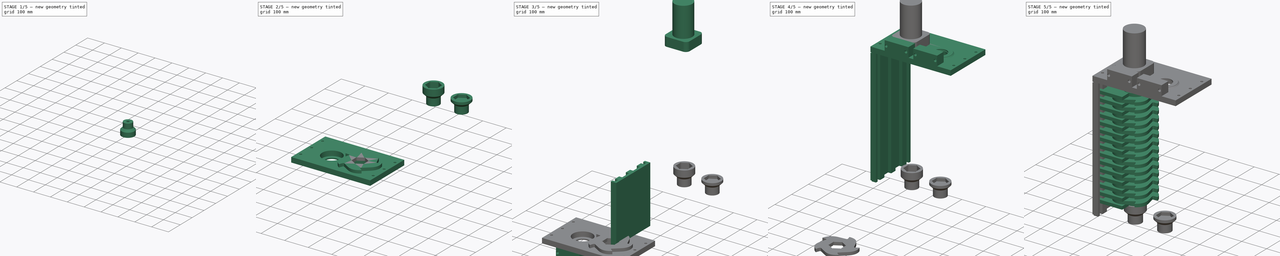
[diagram: build sequence overview — one tinted view per stage of 5, left to right]
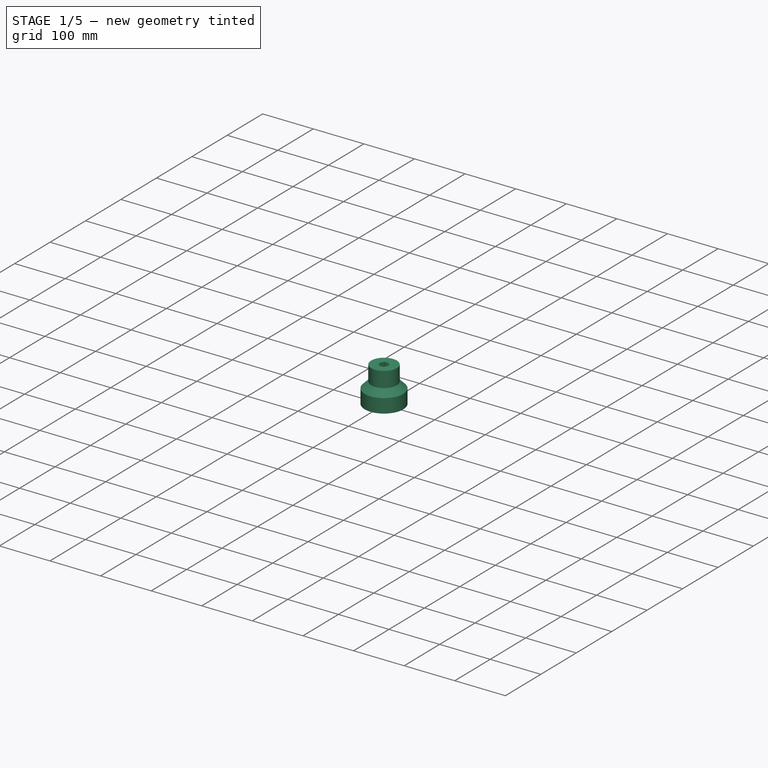
[diagram: stage 1 of 5 — iso view after this stage's code; geometry added in this stage tinted green]
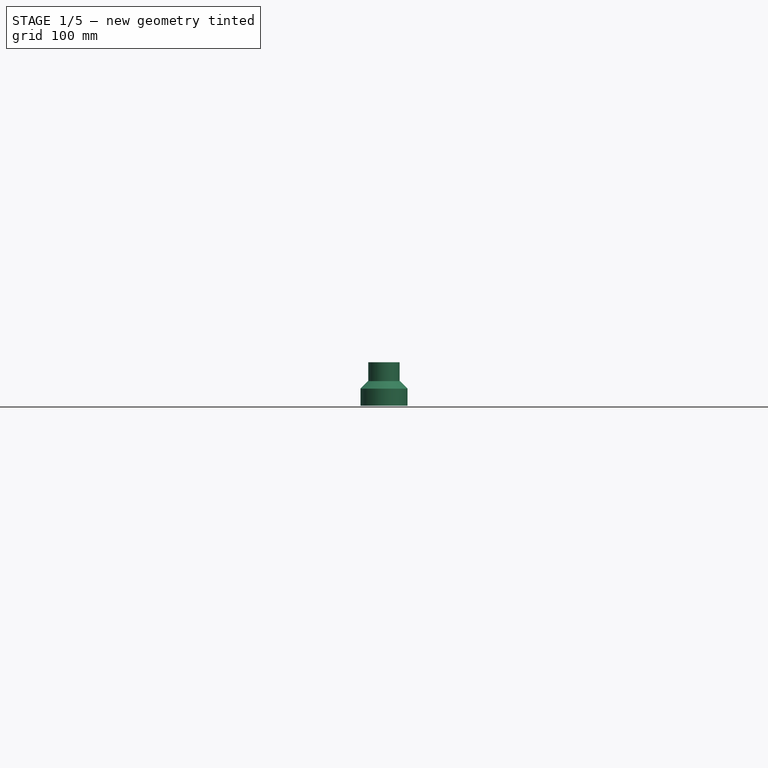
[diagram: stage 1 of 5 — front view after this stage's code; geometry added in this stage tinted green]
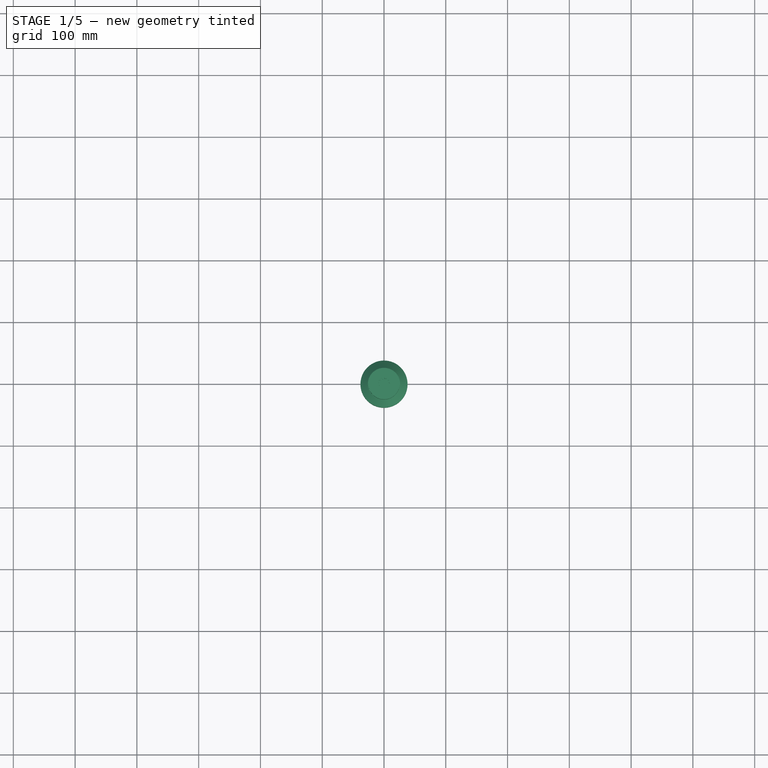
[diagram: stage 1 of 5 — top view after this stage's code; geometry added in this stage tinted green]
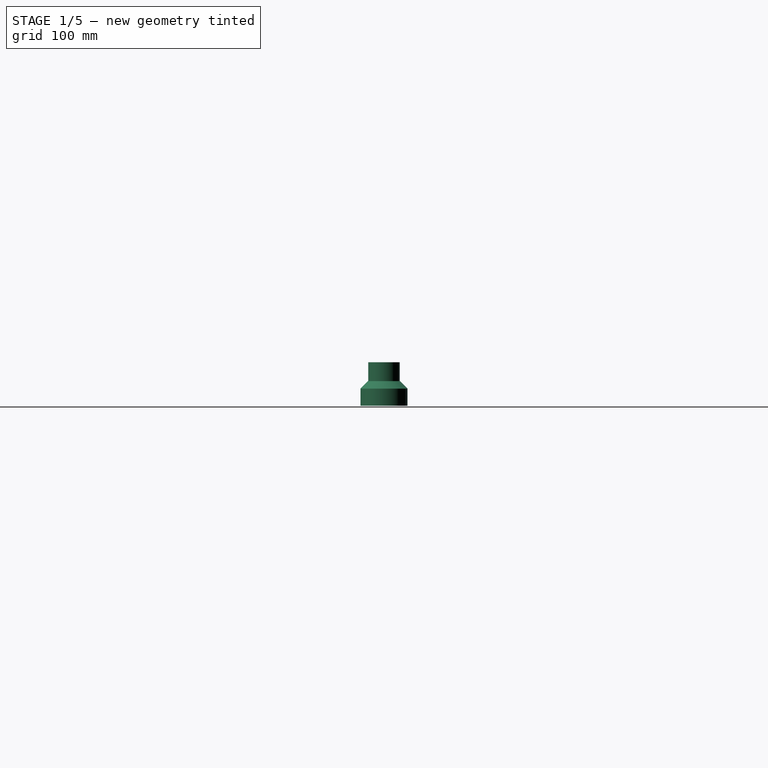
[diagram: stage 1 of 5 — right view after this stage's code; geometry added in this stage tinted green]
FCSTD DOCUMENT  (FreeCAD 1.1R41694 (Git))
Label: Shredder_v0p1
License: All rights reserved
LicenseURL: https://en.wikipedia.org/wiki/All_rights_reserved
objects: Sketcher::SketchObject×18, App::Point×16, PartDesign::Pad×15, Part::FeaturePython×13, PartDesign::Body×11, PartDesign::Pocket×6, App::Part×5, PartDesign::Chamfer×3, PartDesign::AdditiveCylinder×2, Part::Part2DObjectPython×2, PartDesign::Mirrored×1, PartDesign::Hole×1
note: 142 computed .brp shape members not serialized (recipe doc carries the construction recipe); baked Part::Feature solids carry a one-line shape summary decoded from their .brp

FEATURE [App::Point] Origin025
  Role = Origin
FEATURE [App::Point] Origin027
  Role = Origin
FEATURE [Sketcher::SketchObject] Sketch007
  ArcFitTolerance = 1e-06
  AttachmentSupport = -> [XY_Plane012]
  ExternalTypes = [0]
  FullyConstrained = true
  MakeInternals = false
  MapMode = 5
  sketch-geometry (58):
    g0: LineSegment StartX=-25.7 StartY=12.6459 StartZ=0 EndX=-25.7 EndY=-12.6459 EndZ=0
    g1: LineSegment StartX=-23.8017 StartY=-15.9339 StartZ=0 EndX=-1.89834 EndY=-28.5798 EndZ=0
    g2: LineSegment StartX=1.89834 StartY=-28.5798 StartZ=0 EndX=23.8017 EndY=-15.9339 EndZ=0
    g3: LineSegment StartX=25.7 StartY=-12.6459 StartZ=0 EndX=25.7 EndY=12.6459 EndZ=0
    g4: LineSegment StartX=23.8017 StartY=15.9339 StartZ=0 EndX=1.89834 EndY=28.5798 EndZ=0
    g5: LineSegment StartX=-1.89834 StartY=28.5798 StartZ=0 EndX=-23.8017 EndY=15.9339 EndZ=0
    g6: Circle [constr] CenterX=0 CenterY=0 CenterZ=0 NormalX=0 NormalY=0 NormalZ=1 AngleXU=0 Radius=29.6758
    g7: ArcOfCircle CenterX=-25.7 CenterY=14.8379 CenterZ=0 NormalX=0 NormalY=0 NormalZ=1 AngleXU=0 Radius=1.25 StartAngle=1.25605 EndAngle=3.97994
    g8: ArcOfCircle CenterX=-26.8465 CenterY=12.6459 CenterZ=0 NormalX=0 NormalY=0 NormalZ=1 AngleXU=0 Radius=1.1465 StartAngle=-9e-16 EndAngle=0.838346
    g9: ArcOfCircle CenterX=-24.3749 CenterY=16.9268 CenterZ=0 NormalX=0 NormalY=0 NormalZ=1 AngleXU=0 Radius=1.1465 StartAngle=4.39764 EndAngle=5.23599
    g10: GeomPoint [constr] X=-25.7 Y=14.8379 Z=0
    g11: GeomPoint [constr] X=-6.35e-14 Y=29.6758 Z=0
    g12: GeomPoint [constr] X=25.7 Y=14.8379 Z=0
    g13: GeomPoint [constr] X=25.7 Y=-14.8379 Z=0
    g14: GeomPoint [constr] X=-6.35e-14 Y=-29.6758 Z=0
    g15: GeomPoint [constr] X=-25.7 Y=-14.8379 Z=0
    g16: LineSegment [constr] StartX=-25.7 StartY=14.8379 StartZ=0 EndX=-25.7 EndY=12.6459 EndZ=0
    g17: LineSegment [constr] StartX=-25.7 StartY=14.8379 StartZ=0 EndX=-23.8017 EndY=15.9339 EndZ=0
    g18: LineSegment [constr] StartX=-1.89834 StartY=28.5798 StartZ=0 EndX=-6.35e-14 EndY=29.6758 EndZ=0
    g19: LineSegment [constr] StartX=1.89834 StartY=28.5798 StartZ=0 EndX=-6.35e-14 EndY=29.6758 EndZ=0
    g20: LineSegment [constr] StartX=23.8017 StartY=15.9339 StartZ=0 EndX=25.7 EndY=14.8379 EndZ=0
    g21: LineSegment [constr] StartX=25.7 StartY=12.6459 StartZ=0 EndX=25.7 EndY=14.8379 EndZ=0
    g22: LineSegment [constr] StartX=23.8017 StartY=-15.9339 StartZ=0 EndX=25.7 EndY=-14.8379 EndZ=0
    g23: LineSegment [constr] StartX=25.7 StartY=-12.6459 StartZ=0 EndX=25.7 EndY=-14.8379 EndZ=0
    g24: LineSegment [constr] StartX=1.89834 StartY=-28.5798 StartZ=0 EndX=-6.35e-14 EndY=-29.6758 EndZ=0
    g25: LineSegment [constr] StartX=-1.89834 StartY=-28.5798 StartZ=0 EndX=-6.35e-14 EndY=-29.6758 EndZ=0
    g26: LineSegment [constr] StartX=-25.7 StartY=-12.6459 StartZ=0 EndX=-25.7 EndY=-14.8379 EndZ=0
    g27: LineSegment [constr] StartX=-23.8017 StartY=-15.9339 StartZ=0 EndX=-25.7 EndY=-14.8379 EndZ=0
    g28: LineSegment StartX=-26.5359 StartY=13.9085 StartZ=0 EndX=-26.0798 EndY=13.4984 EndZ=0
    g29: LineSegment StartX=-25.313 StartY=16.0265 StartZ=0 EndX=-24.7298 EndY=15.8366 EndZ=0
    g30: ArcOfCircle CenterX=-6.35e-14 CenterY=29.6758 CenterZ=0 NormalX=0 NormalY=0 NormalZ=1 AngleXU=0 Radius=1.25 StartAngle=0.208852 EndAngle=2.93274
    g31: ArcOfCircle CenterX=2.47159 CenterY=29.5727 CenterZ=0 NormalX=0 NormalY=0 NormalZ=1 AngleXU=0 Radius=1.1465 StartAngle=3.35044 EndAngle=4.18879
    g32: ArcOfCircle CenterX=-2.47159 CenterY=29.5727 CenterZ=0 NormalX=0 NormalY=0 NormalZ=1 AngleXU=0 Radius=1.1465 StartAngle=5.23599 EndAngle=6.07433
    g33: LineSegment StartX=-1.22284 StartY=29.935 StartZ=0 EndX=-1.35 EndY=29.335 EndZ=0
    g34: LineSegment StartX=1.22284 StartY=29.935 StartZ=0 EndX=1.35 EndY=29.335 EndZ=0
    g35: ArcOfCircle CenterX=24.3749 CenterY=16.9268 CenterZ=0 NormalX=0 NormalY=0 NormalZ=1 AngleXU=0 Radius=1.1465 StartAngle=4.18879 EndAngle=5.02714
    g36: ArcOfCircle CenterX=25.7 CenterY=14.8379 CenterZ=0 NormalX=0 NormalY=0 NormalZ=1 AngleXU=0 Radius=1.25 StartAngle=5.44484 EndAngle=8.16873
    g37: ArcOfCircle CenterX=26.8465 CenterY=12.6459 CenterZ=0 NormalX=0 NormalY=0 NormalZ=1 AngleXU=0 Radius=1.1465 StartAngle=2.30325 EndAngle=3.14159
    g38: LineSegment StartX=24.7298 StartY=15.8366 StartZ=0 EndX=25.313 EndY=16.0265 EndZ=0
    g39: LineSegment StartX=26.0798 StartY=13.4984 StartZ=0 EndX=26.5359 EndY=13.9085 EndZ=0
    g40: LineSegment [constr] StartX=-26.0798 StartY=13.4984 StartZ=0 EndX=-24.7298 EndY=15.8366 EndZ=0
    g41: LineSegment [constr] StartX=-1.35 StartY=29.335 StartZ=0 EndX=1.35 EndY=29.335 EndZ=0
    g42: ArcOfCircle CenterX=25.7 CenterY=-14.8379 CenterZ=0 NormalX=0 NormalY=0 NormalZ=1 AngleXU=0 Radius=1.25 StartAngle=4.39764 EndAngle=7.12153
    g43: ArcOfCircle CenterX=26.8465 CenterY=-12.6459 CenterZ=0 NormalX=0 NormalY=0 NormalZ=1 AngleXU=0 Radius=1.1465 StartAngle=3.14159 EndAngle=3.97994
    g44: ArcOfCircle CenterX=24.3749 CenterY=-16.9268 CenterZ=0 NormalX=0 NormalY=0 NormalZ=1 AngleXU=0 Radius=1.1465 StartAngle=1.25605 EndAngle=2.0944
    g45: LineSegment StartX=26.0798 StartY=-13.4984 StartZ=0 EndX=26.5359 EndY=-13.9085 EndZ=0
    g46: LineSegment StartX=24.7298 StartY=-15.8366 StartZ=0 EndX=25.313 EndY=-16.0265 EndZ=0
    g47: ArcOfCircle CenterX=-2.47159 CenterY=-29.5727 CenterZ=0 NormalX=0 NormalY=0 NormalZ=1 AngleXU=0 Radius=1.1465 StartAngle=0.208852 EndAngle=1.0472
    g48: ArcOfCircle CenterX=2.47159 CenterY=-29.5727 CenterZ=0 NormalX=0 NormalY=0 NormalZ=1 AngleXU=0 Radius=1.1465 StartAngle=2.0944 EndAngle=2.93274
    g49: ArcOfCircle CenterX=-6.35e-14 CenterY=-29.6758 CenterZ=0 NormalX=0 NormalY=0 NormalZ=1 AngleXU=0 Radius=1.25 StartAngle=3.35044 EndAngle=6.07433
    g50: LineSegment StartX=-1.35 StartY=-29.335 StartZ=0 EndX=-1.22284 EndY=-29.935 EndZ=0
    g51: LineSegment StartX=1.22284 StartY=-29.935 StartZ=0 EndX=1.35 EndY=-29.335 EndZ=0
    g52: ArcOfCircle CenterX=-26.8465 CenterY=-12.6459 CenterZ=0 NormalX=0 NormalY=0 NormalZ=1 AngleXU=0 Radius=1.1465 StartAngle=5.44484 EndAngle=6.28319
    g53: ArcOfCircle CenterX=-24.3749 CenterY=-16.9268 CenterZ=0 NormalX=0 NormalY=0 NormalZ=1 AngleXU=0 Radius=1.1465 StartAngle=1.0472 EndAngle=1.88554
    g54: ArcOfCircle CenterX=-25.7 CenterY=-14.8379 CenterZ=0 NormalX=0 NormalY=0 NormalZ=1 AngleXU=0 Radius=1.25 StartAngle=2.30325 EndAngle=5.02714
    g55: LineSegment StartX=-26.5359 StartY=-13.9085 StartZ=0 EndX=-26.0798 EndY=-13.4984 EndZ=0
    g56: LineSegment StartX=-25.313 StartY=-16.0265 StartZ=0 EndX=-24.7298 EndY=-15.8366 EndZ=0
    g57: Circle CenterX=0 CenterY=0 CenterZ=0 NormalX=0 NormalY=0 NormalZ=1 AngleXU=0 Radius=38.1
  constraints (128):
    c: PointOnObject(g15,g6)
    c: PointOnObject(g14,g6)
    c: PointOnObject(g13,g6)
    c: PointOnObject(g12,g6)
    c: PointOnObject(g11,g6)
    c: PointOnObject(g10,g6)
    c: Vertical(g11,g14)
    c: Distance(g13,g0) = 51.4
    c: PointOnObject(g10,g0)
    c: PointOnObject(g10,g5)
    c: PointOnObject(g11,g4)
    c: PointOnObject(g11,g5)
    c: PointOnObject(g12,g3)
    c: PointOnObject(g12,g4)
    c: PointOnObject(g13,g2)
    c: PointOnObject(g13,g3)
    c: PointOnObject(g14,g1)
    c: PointOnObject(g14,g2)
    c: PointOnObject(g15,g0)
    c: PointOnObject(g15,g1)
    c: Coincident(g16,g10)
    c: Vertical(g16)
    c: Coincident(g17,g10)
    c: Coincident(g18,g5)
    c: Coincident(g18,g11)
    c: Coincident(g19,g4)
    c: Coincident(g19,g11)
    c: Coincident(g20,g12)
    c: Coincident(g21,g12)
    c: Vertical(g21)
    c: Coincident(g22,g13)
    c: Coincident(g23,g13)
    c: Coincident(g25,g14)
    c: Coincident(g26,g15)
    c: Coincident(g27,g15)
    c: Coincident(g10,g7)
    c: PointOnObject(g9,g6)
    c: Coincident(g17,g9)
    c: PointOnObject(g8,g6)
    c: Coincident(g16,g8)
    c: Equal(g16,g17)
    c: Tangent(g5,g9) = 1.5708
    c: Tangent(g0,g8) = 1.5708
    c: Equal(g20,g21)
    c: Equal(g18,g19)
    c: Equal(g17,g18)
    c: Equal(g19,g20)
    c: Equal(g23,g21)
    c: Equal(g22,g23)
    c: Equal(g22,g24)
    c: Equal(g25,g24)
    c: Equal(g27,g25)
    c: Equal(g26,g27)
    c: Distance(g8,g9) = 2.7
    c: Tangent(g28,g7) = -1.5708
    c: Tangent(g8,g28) = 1.5708
    c: Tangent(g29,g7) = 1.5708
    c: Tangent(g29,g9) = -1.5708
    c: Coincident(g30,g11)
    c: PointOnObject(g31,g6)
    c: PointOnObject(g32,g6)
    c: Tangent(g32,g5) = 1.5708
    c: Tangent(g31,g4) = 1.5708
    c: Tangent(g33,g32) = 1.5708
    c: Tangent(g33,g30) = -1.5708
    c: Tangent(g34,g30) = 1.5708
    c: Tangent(g34,g31) = -1.5708
    c: Equal(g28,g29)
    c: Equal(g33,g29)
    c: Equal(g33,g34)
    c: PointOnObject(g35,g6)
    c: Coincident(g36,g12)
    c: PointOnObject(g37,g6)
    c: Coincident(g20,g35)
    c: Coincident(g21,g37)
    c: Tangent(g38,g35) = -1.5708
    c: Tangent(g38,g36) = 1.5708
    c: Tangent(g39,g37) = 1.5708
    c: Tangent(g39,g36) = -1.5708
    c: Equal(g34,g38)
    c: Equal(g38,g39)
    c: Coincident(g40,g8)
    c: Coincident(g40,g9)
    c: Coincident(g41,g32)
    c: Coincident(g41,g31)
    c: Radius(g7) = 1.25
    c: Tangent(g4,g35) = 1.5708
    c: Tangent(g3,g37) = 1.5708
    c: Coincident(g42,g13)
    c: PointOnObject(g43,g6)
    c: PointOnObject(g44,g6)
    c: Coincident(g23,g43)
    c: Tangent(g3,g43) = 1.5708
    c: Coincident(g22,g44)
    c: Tangent(g2,g44) = 1.5708
    c: Tangent(g45,g43) = -1.5708
    c: Tangent(g45,g42) = 1.5708
    c: Tangent(g46,g44) = 1.5708
    c: Tangent(g46,g42) = -1.5708
    c: Equal(g39,g45)
    c: Coincident(g14,g24)
    c: PointOnObject(g47,g6)
    c: PointOnObject(g48,g6)
    c: Coincident(g49,g14)
    c: Coincident(g25,g47)
    c: Coincident(g24,g48)
    c: Tangent(g1,g47) = 1.5708
    c: Tangent(g2,g48) = 1.5708
    c: Tangent(g51,g48) = 1.5708
    c: Tangent(g51,g49) = -1.5708
    c: Tangent(g50,g49) = -1.5708
    c: Tangent(g50,g47) = 1.5708
    c: Equal(g46,g51)
    c: PointOnObject(g52,g6)
    c: PointOnObject(g53,g6)
    c: Coincident(g54,g15)
    c: Coincident(g27,g53)
    c: Coincident(g26,g52)
    c: Tangent(g0,g52) = 1.5708
    c: Tangent(g1,g53) = 1.5708
    c: Tangent(g56,g53) = 1.5708
    c: Tangent(g56,g54) = -1.5708
    c: Tangent(g55,g54) = 1.5708
    c: Tangent(g55,g52) = -1.5708
    c: Equal(g56,g50)
    c: Coincident(g6,g-1)
    c: Coincident(g57,g-1)
    c: Diameter(g57) = 76.2
FEATURE [PartDesign::Pad] Pad009
  Direction = (0,0,1)
  Length = 12.7
  Length2 = 10
  Profile = -> Sketch007
  ReferenceAxis = -> Sketch007 [N_Axis]
  Refine = true
  Suppressed = false
  Type = 0
FEATURE [Sketcher::SketchObject] Sketch008
  ArcFitTolerance = 1e-06
  AttachmentSupport = -> [XY_Plane013]
  ExternalTypes = [0]
  FullyConstrained = true
  MakeInternals = false
  MapMode = 5
  sketch-geometry (58):
    g0: LineSegment StartX=-25.7 StartY=12.6459 StartZ=0 EndX=-25.7 EndY=-12.6459 EndZ=0
    g1: LineSegment StartX=-23.8017 StartY=-15.9339 StartZ=0 EndX=-1.89834 EndY=-28.5798 EndZ=0
    g2: LineSegment StartX=1.89834 StartY=-28.5798 StartZ=0 EndX=23.8017 EndY=-15.9339 EndZ=0
    g3: LineSegment StartX=25.7 StartY=-12.6459 StartZ=0 EndX=25.7 EndY=12.6459 EndZ=0
    g4: LineSegment StartX=23.8017 StartY=15.9339 StartZ=0 EndX=1.89834 EndY=28.5798 EndZ=0
    g5: LineSegment StartX=-1.89834 StartY=28.5798 StartZ=0 EndX=-23.8017 EndY=15.9339 EndZ=0
    g6: Circle [constr] CenterX=0 CenterY=0 CenterZ=0 NormalX=0 NormalY=0 NormalZ=1 AngleXU=0 Radius=29.6758
    g7: ArcOfCircle CenterX=-25.7 CenterY=14.8379 CenterZ=0 NormalX=0 NormalY=0 NormalZ=1 AngleXU=0 Radius=1.25 StartAngle=1.25605 EndAngle=3.97994
    g8: ArcOfCircle CenterX=-26.8465 CenterY=12.6459 CenterZ=0 NormalX=0 NormalY=0 NormalZ=1 AngleXU=0 Radius=1.1465 StartAngle=0 EndAngle=0.838346
    g9: ArcOfCircle CenterX=-24.3749 CenterY=16.9268 CenterZ=0 NormalX=0 NormalY=0 NormalZ=1 AngleXU=0 Radius=1.1465 StartAngle=4.39764 EndAngle=5.23599
    g10: GeomPoint [constr] X=-25.7 Y=14.8379 Z=0
    g11: GeomPoint [constr] X=4.77e-14 Y=29.6758 Z=0
    g12: GeomPoint [constr] X=25.7 Y=14.8379 Z=0
    g13: GeomPoint [constr] X=25.7 Y=-14.8379 Z=0
    g14: GeomPoint [constr] X=4.77e-14 Y=-29.6758 Z=0
    g15: GeomPoint [constr] X=-25.7 Y=-14.8379 Z=0
    g16: LineSegment [constr] StartX=-25.7 StartY=14.8379 StartZ=0 EndX=-25.7 EndY=12.6459 EndZ=0
    g17: LineSegment [constr] StartX=-25.7 StartY=14.8379 StartZ=0 EndX=-23.8017 EndY=15.9339 EndZ=0
    g18: LineSegment [constr] StartX=-1.89834 StartY=28.5798 StartZ=0 EndX=4.77e-14 EndY=29.6758 EndZ=0
    g19: LineSegment [constr] StartX=1.89834 StartY=28.5798 StartZ=0 EndX=4.77e-14 EndY=29.6758 EndZ=0
    g20: LineSegment [constr] StartX=23.8017 StartY=15.9339 StartZ=0 EndX=25.7 EndY=14.8379 EndZ=0
    g21: LineSegment [constr] StartX=25.7 StartY=12.6459 StartZ=0 EndX=25.7 EndY=14.8379 EndZ=0
    g22: LineSegment [constr] StartX=23.8017 StartY=-15.9339 StartZ=0 EndX=25.7 EndY=-14.8379 EndZ=0
    g23: LineSegment [constr] StartX=25.7 StartY=-12.6459 StartZ=0 EndX=25.7 EndY=-14.8379 EndZ=0
    g24: LineSegment [constr] StartX=1.89834 StartY=-28.5798 StartZ=0 EndX=4.77e-14 EndY=-29.6758 EndZ=0
    g25: LineSegment [constr] StartX=-1.89834 StartY=-28.5798 StartZ=0 EndX=4.77e-14 EndY=-29.6758 EndZ=0
    g26: LineSegment [constr] StartX=-25.7 StartY=-12.6459 StartZ=0 EndX=-25.7 EndY=-14.8379 EndZ=0
    g27: LineSegment [constr] StartX=-23.8017 StartY=-15.9339 StartZ=0 EndX=-25.7 EndY=-14.8379 EndZ=0
    g28: LineSegment StartX=-26.5359 StartY=13.9085 StartZ=0 EndX=-26.0798 EndY=13.4984 EndZ=0
    g29: LineSegment StartX=-25.313 StartY=16.0265 StartZ=0 EndX=-24.7298 EndY=15.8366 EndZ=0
    g30: ArcOfCircle CenterX=4.77e-14 CenterY=29.6758 CenterZ=0 NormalX=0 NormalY=0 NormalZ=1 AngleXU=0 Radius=1.25 StartAngle=0.208852 EndAngle=2.93274
    g31: ArcOfCircle CenterX=2.47159 CenterY=29.5727 CenterZ=0 NormalX=0 NormalY=0 NormalZ=1 AngleXU=0 Radius=1.1465 StartAngle=3.35044 EndAngle=4.18879
    g32: ArcOfCircle CenterX=-2.47159 CenterY=29.5727 CenterZ=0 NormalX=0 NormalY=0 NormalZ=1 AngleXU=0 Radius=1.1465 StartAngle=5.23599 EndAngle=6.07433
    g33: LineSegment StartX=-1.22284 StartY=29.935 StartZ=0 EndX=-1.35 EndY=29.335 EndZ=0
    g34: LineSegment StartX=1.22284 StartY=29.935 StartZ=0 EndX=1.35 EndY=29.335 EndZ=0
    g35: ArcOfCircle CenterX=24.3749 CenterY=16.9268 CenterZ=0 NormalX=0 NormalY=0 NormalZ=1 AngleXU=0 Radius=1.1465 StartAngle=4.18879 EndAngle=5.02714
    g36: ArcOfCircle CenterX=25.7 CenterY=14.8379 CenterZ=0 NormalX=0 NormalY=0 NormalZ=1 AngleXU=0 Radius=1.25 StartAngle=5.44484 EndAngle=8.16873
    g37: ArcOfCircle CenterX=26.8465 CenterY=12.6459 CenterZ=0 NormalX=0 NormalY=0 NormalZ=1 AngleXU=0 Radius=1.1465 StartAngle=2.30325 EndAngle=3.14159
    g38: LineSegment StartX=24.7298 StartY=15.8366 StartZ=0 EndX=25.313 EndY=16.0265 EndZ=0
    g39: LineSegment StartX=26.0798 StartY=13.4984 StartZ=0 EndX=26.5359 EndY=13.9085 EndZ=0
    g40: LineSegment [constr] StartX=-26.0798 StartY=13.4984 StartZ=0 EndX=-24.7298 EndY=15.8366 EndZ=0
    g41: LineSegment [constr] StartX=-1.35 StartY=29.335 StartZ=0 EndX=1.35 EndY=29.335 EndZ=0
    g42: ArcOfCircle CenterX=25.7 CenterY=-14.8379 CenterZ=0 NormalX=0 NormalY=0 NormalZ=1 AngleXU=0 Radius=1.25 StartAngle=4.39764 EndAngle=7.12153
    g43: ArcOfCircle CenterX=26.8465 CenterY=-12.6459 CenterZ=0 NormalX=0 NormalY=0 NormalZ=1 AngleXU=0 Radius=1.1465 StartAngle=3.14159 EndAngle=3.97994
    g44: ArcOfCircle CenterX=24.3749 CenterY=-16.9268 CenterZ=0 NormalX=0 NormalY=0 NormalZ=1 AngleXU=0 Radius=1.1465 StartAngle=1.25605 EndAngle=2.0944
    g45: LineSegment StartX=26.0798 StartY=-13.4984 StartZ=0 EndX=26.5359 EndY=-13.9085 EndZ=0
    g46: LineSegment StartX=24.7298 StartY=-15.8366 StartZ=0 EndX=25.313 EndY=-16.0265 EndZ=0
    g47: ArcOfCircle CenterX=-2.47159 CenterY=-29.5727 CenterZ=0 NormalX=0 NormalY=0 NormalZ=1 AngleXU=0 Radius=1.1465 StartAngle=0.208852 EndAngle=1.0472
    g48: ArcOfCircle CenterX=2.47159 CenterY=-29.5727 CenterZ=0 NormalX=0 NormalY=0 NormalZ=1 AngleXU=0 Radius=1.1465 StartAngle=2.0944 EndAngle=2.93274
    g49: ArcOfCircle CenterX=4.77e-14 CenterY=-29.6758 CenterZ=0 NormalX=0 NormalY=0 NormalZ=1 AngleXU=0 Radius=1.25 StartAngle=3.35044 EndAngle=6.07433
    g50: LineSegment StartX=-1.35 StartY=-29.335 StartZ=0 EndX=-1.22284 EndY=-29.935 EndZ=0
    g51: LineSegment StartX=1.22284 StartY=-29.935 StartZ=0 EndX=1.35 EndY=-29.335 EndZ=0
    g52: ArcOfCircle CenterX=-26.8465 CenterY=-12.6459 CenterZ=0 NormalX=0 NormalY=0 NormalZ=1 AngleXU=0 Radius=1.1465 StartAngle=5.44484 EndAngle=6.28319
    g53: ArcOfCircle CenterX=-24.3749 CenterY=-16.9268 CenterZ=0 NormalX=0 NormalY=0 NormalZ=1 AngleXU=0 Radius=1.1465 StartAngle=1.0472 EndAngle=1.88554
    g54: ArcOfCircle CenterX=-25.7 CenterY=-14.8379 CenterZ=0 NormalX=0 NormalY=0 NormalZ=1 AngleXU=0 Radius=1.25 StartAngle=2.30325 EndAngle=5.02714
    g55: LineSegment StartX=-26.5359 StartY=-13.9085 StartZ=0 EndX=-26.0798 EndY=-13.4984 EndZ=0
    g56: LineSegment StartX=-25.313 StartY=-16.0265 StartZ=0 EndX=-24.7298 EndY=-15.8366 EndZ=0
    g57: Circle CenterX=0 CenterY=0 CenterZ=0 NormalX=0 NormalY=0 NormalZ=1 AngleXU=0 Radius=38.1
  constraints (128):
    c: PointOnObject(g15,g6)
    c: PointOnObject(g14,g6)
    c: PointOnObject(g13,g6)
    c: PointOnObject(g12,g6)
    c: PointOnObject(g11,g6)
    c: PointOnObject(g10,g6)
    c: Vertical(g11,g14)
    c: Distance(g13,g0) = 51.4
    c: PointOnObject(g10,g0)
    c: PointOnObject(g10,g5)
    c: PointOnObject(g11,g4)
    c: PointOnObject(g11,g5)
    c: PointOnObject(g12,g3)
    c: PointOnObject(g12,g4)
    c: PointOnObject(g13,g2)
    c: PointOnObject(g13,g3)
    c: PointOnObject(g14,g1)
    c: PointOnObject(g14,g2)
    c: PointOnObject(g15,g0)
    c: PointOnObject(g15,g1)
    c: Coincident(g16,g10)
    c: Vertical(g16)
    c: Coincident(g17,g10)
    c: Coincident(g18,g5)
    c: Coincident(g18,g11)
    c: Coincident(g19,g4)
    c: Coincident(g19,g11)
    c: Coincident(g20,g12)
    c: Coincident(g21,g12)
    c: Vertical(g21)
    c: Coincident(g22,g13)
    c: Coincident(g23,g13)
    c: Coincident(g25,g14)
    c: Coincident(g26,g15)
    c: Coincident(g27,g15)
    c: Coincident(g10,g7)
    c: PointOnObject(g9,g6)
    c: Coincident(g17,g9)
    c: PointOnObject(g8,g6)
    c: Coincident(g16,g8)
    c: Equal(g16,g17)
    c: Tangent(g5,g9) = 1.5708
    c: Tangent(g0,g8) = 1.5708
    c: Equal(g20,g21)
    c: Equal(g18,g19)
    c: Equal(g17,g18)
    c: Equal(g19,g20)
    c: Equal(g23,g21)
    c: Equal(g22,g23)
    c: Equal(g22,g24)
    c: Equal(g25,g24)
    c: Equal(g27,g25)
    c: Equal(g26,g27)
    c: Distance(g8,g9) = 2.7
    c: Tangent(g28,g7) = -1.5708
    c: Tangent(g8,g28) = 1.5708
    c: Tangent(g29,g7) = 1.5708
    c: Tangent(g29,g9) = -1.5708
    c: Coincident(g30,g11)
    c: PointOnObject(g31,g6)
    c: PointOnObject(g32,g6)
    c: Tangent(g32,g5) = 1.5708
    c: Tangent(g31,g4) = 1.5708
    c: Tangent(g33,g32) = 1.5708
    c: Tangent(g33,g30) = -1.5708
    c: Tangent(g34,g30) = 1.5708
    c: Tangent(g34,g31) = -1.5708
    c: Equal(g28,g29)
    c: Equal(g33,g29)
    c: Equal(g33,g34)
    c: PointOnObject(g35,g6)
    c: Coincident(g36,g12)
    c: PointOnObject(g37,g6)
    c: Coincident(g20,g35)
    c: Coincident(g21,g37)
    c: Tangent(g38,g35) = -1.5708
    c: Tangent(g38,g36) = 1.5708
    c: Tangent(g39,g37) = 1.5708
    c: Tangent(g39,g36) = -1.5708
    c: Equal(g34,g38)
    c: Equal(g38,g39)
    c: Coincident(g40,g8)
    c: Coincident(g40,g9)
    c: Coincident(g41,g32)
    c: Coincident(g41,g31)
    c: Radius(g7) = 1.25
    c: Tangent(g4,g35) = 1.5708
    c: Tangent(g3,g37) = 1.5708
    c: Coincident(g42,g13)
    c: PointOnObject(g43,g6)
    c: PointOnObject(g44,g6)
    c: Coincident(g23,g43)
    c: Tangent(g3,g43) = 1.5708
    c: Coincident(g22,g44)
    c: Tangent(g2,g44) = 1.5708
    c: Tangent(g45,g43) = -1.5708
    c: Tangent(g45,g42) = 1.5708
    c: Tangent(g46,g44) = 1.5708
    c: Tangent(g46,g42) = -1.5708
    c: Equal(g39,g45)
    c: Coincident(g14,g24)
    c: PointOnObject(g47,g6)
    c: PointOnObject(g48,g6)
    c: Coincident(g49,g14)
    c: Coincident(g25,g47)
    c: Coincident(g24,g48)
    c: Tangent(g1,g47) = 1.5708
    c: Tangent(g2,g48) = 1.5708
    c: Tangent(g51,g48) = 1.5708
    c: Tangent(g51,g49) = -1.5708
    c: Tangent(g50,g49) = -1.5708
    c: Tangent(g50,g47) = 1.5708
    c: Equal(g46,g51)
    c: PointOnObject(g52,g6)
    c: PointOnObject(g53,g6)
    c: Coincident(g54,g15)
    c: Coincident(g27,g53)
    c: Coincident(g26,g52)
    c: Tangent(g0,g52) = 1.5708
    c: Tangent(g1,g53) = 1.5708
    c: Tangent(g56,g53) = 1.5708
    c: Tangent(g56,g54) = -1.5708
    c: Tangent(g55,g54) = 1.5708
    c: Tangent(g55,g52) = -1.5708
    c: Equal(g56,g50)
    c: Coincident(g6,g-1)
    c: Coincident(g57,g-1)
    c: Diameter(g57) = 76.2
FEATURE [PartDesign::Pad] Pad011
  Direction = (0,0,1)
  Length = 29.7
  Length2 = 10
  Profile = -> Sketch008
  ReferenceAxis = -> Sketch008 [N_Axis]
  Refine = true
  Suppressed = false
  Type = 0
FEATURE [App::Part] Part002  label="Body"
  Group = -> [Body010,Clone005,Body011,Clone006]
  Origin = -> Origin016
FEATURE [PartDesign::Pad] Pad020
  BaseFeature = -> Pad011
  Direction = (0,0,1)
  Length = 10
  Length2 = 10
  Profile = -> Pad011 [Edge3]
  Refine = true
  Suppressed = false
  Type = 0
FEATURE [PartDesign::AdditiveCylinder] Cylinder003
  Angle = 360
  AttacherType = Attacher::AttachEngine3D
  BaseFeature = -> Pad020
  FirstAngle = 0
  Height = 30.59
  MapMode = 11
  Placement = pos=(0,0,39.7) rot=(0,0,1;1.5708rad)
  Radius = 25.4
  Refine = true
  SecondAngle = 0
  Suppressed = false
FEATURE [Part::Part2DObjectPython] InvoluteGear  # Draft 2D object (typed FeaturePython)
  AddendumCoefficient = 0.75
  AttacherType = Attacher::AttachEngine3D
  AttachmentSupport = -> [Cylinder003]
  DedendumCoefficient = 0.75
  ExternalGear = true
  HighPrecision = true
  MapMode = 11
  Modules = 1.45
  NumberOfTeeth = 12
  Placement = pos=(0,0,70.29) rot=(0,0,1;3.14159rad)
  PressureAngle = 40
  ProfileShiftCoefficient = 0
  RootFilletCoefficient = 0.38
FEATURE [PartDesign::Pocket] Pocket004
  BaseFeature = -> Cylinder003
  Direction = (0,0,-1)
  Length = 12
  Length2 = 5
  Placement = pos=(0,0,39.7) rot=(0,0,1;1.5708rad)
  Profile = -> InvoluteGear
  ReferenceAxis = -> InvoluteGear [N_Axis]
  Refine = true
  Suppressed = false
  Type = 0
FEATURE [PartDesign::Pad] Pad021
  BaseFeature = -> Pad009
  Direction = (0,0,1)
  Length = 10
  Length2 = 10
  Profile = -> Pad009 [Edge3]
  Refine = true
  Suppressed = false
  Type = 0
FEATURE [PartDesign::AdditiveCylinder] Cylinder002
  Angle = 360
  AttacherType = Attacher::AttachEngine3D
  AttachmentSupport = -> [Pad021]
  BaseFeature = -> Pad021
  FirstAngle = 0
  Height = 30.59
  MapMode = 11
  Placement = pos=(0,0,22.7) rot=(0,0,1;1.5708rad)
  Radius = 25.4
  Refine = true
  SecondAngle = 0
  Suppressed = false
FEATURE [PartDesign::Chamfer] Chamfer002
  Angle = 45
  Base = -> Pocket004 [Edge1]
  BaseFeature = -> Pocket004
  ChamferType = 0
  FlipDirection = false
  Placement = pos=(0,0,39.7) rot=(0,0,1;1.5708rad)
  Refine = true
  Size = 12
  Size2 = 1
  SupportTransform = false
  Suppressed = false
  UseAllEdges = false
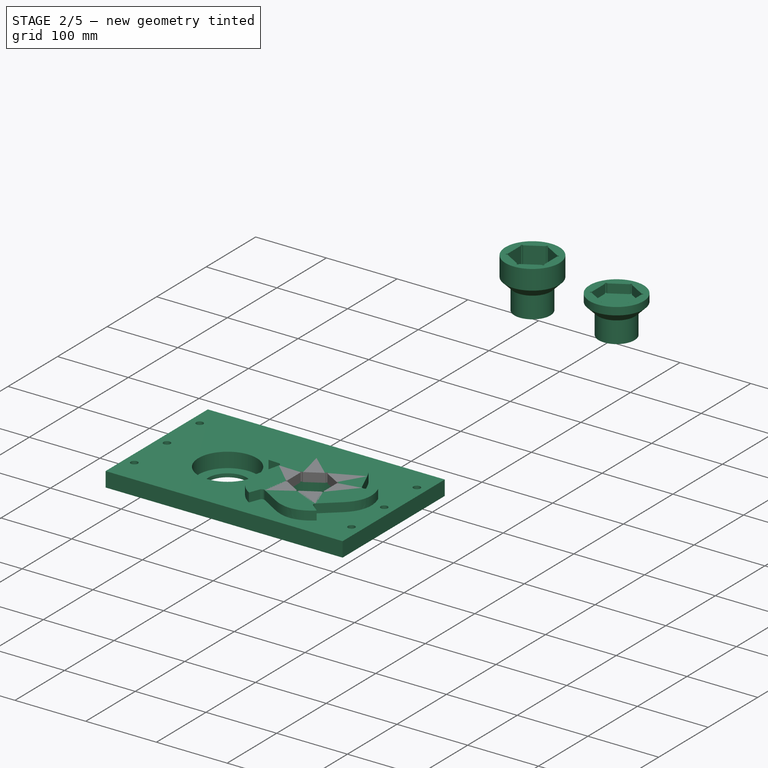
[diagram: stage 2 of 5 — iso view after this stage's code; geometry added in this stage tinted green]
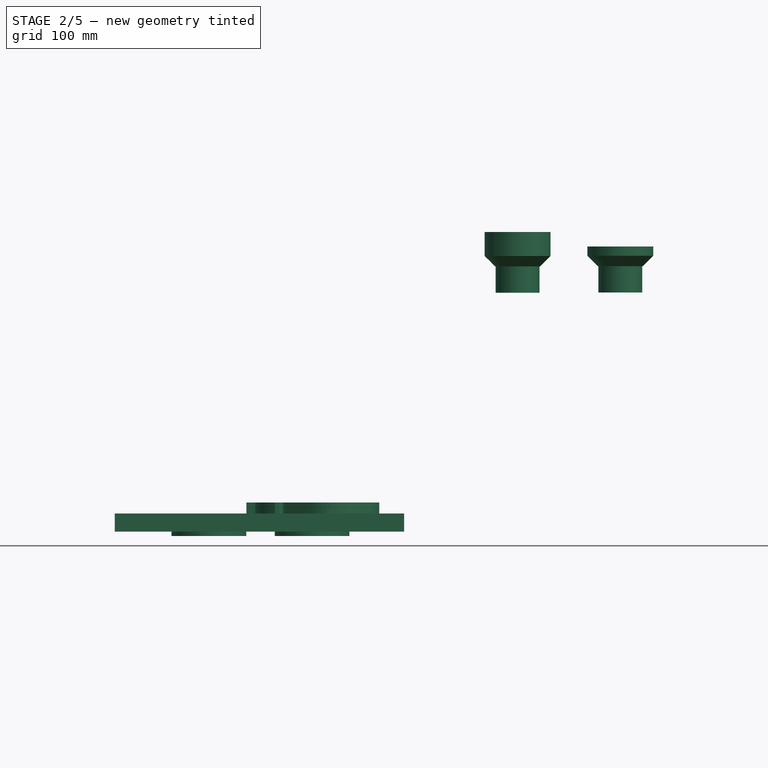
[diagram: stage 2 of 5 — front view after this stage's code; geometry added in this stage tinted green]
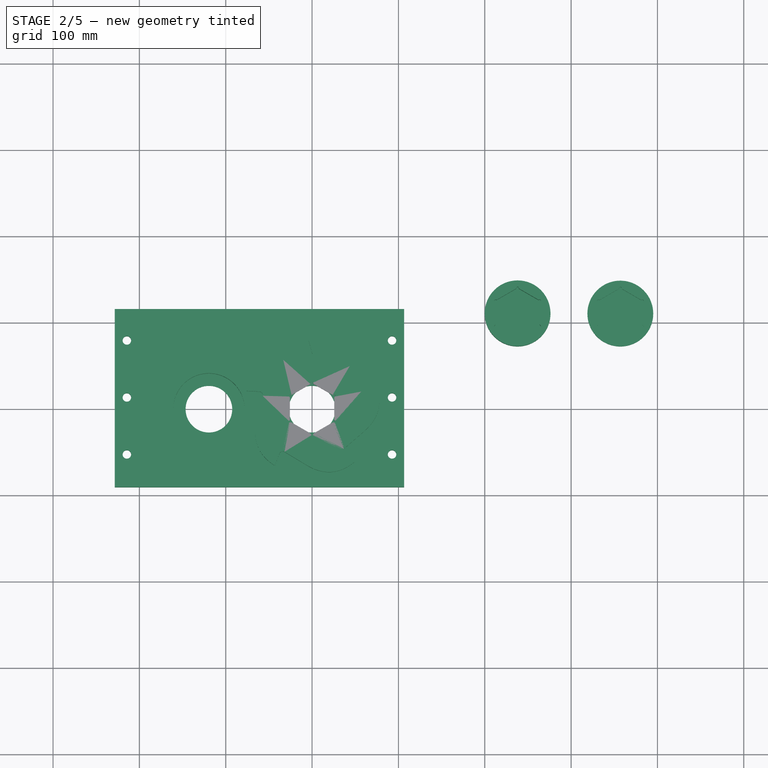
[diagram: stage 2 of 5 — top view after this stage's code; geometry added in this stage tinted green]
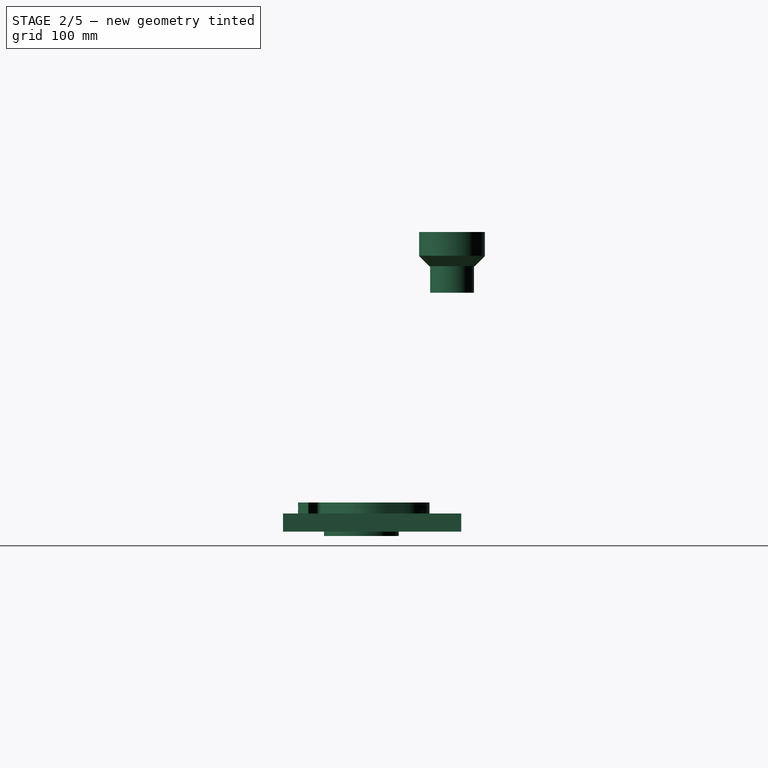
[diagram: stage 2 of 5 — right view after this stage's code; geometry added in this stage tinted green]
FEATURE [App::Point] Origin009
  Role = Origin
FEATURE [Sketcher::SketchObject] Sketch003
  ArcFitTolerance = 1e-06
  AttachmentSupport = -> [XY_Plane004]
  ExternalTypes = [0]
  FullyConstrained = true
  MakeInternals = false
  MapMode = 5
  sketch-geometry (61):
    g0: ArcOfCircle CenterX=-3.8637 CenterY=63.2147 CenterZ=0 NormalX=0 NormalY=0 NormalZ=1 AngleXU=0 Radius=4 StartAngle=4.79966 EndAngle=6.54498
    g1: LineSegment StartX=61.1054 StartY=19.8543 StartZ=0 EndX=73.6854 EndY=28.0239 EndZ=0
    g2: LineSegment StartX=37.7652 StartY=-51.9793 StartZ=0 EndX=49.4224 EndY=-61.4191 EndZ=0
    g3: LineSegment StartX=-37.7652 StartY=-51.9793 StartZ=0 EndX=-43.1407 EndY=-65.983 EndZ=0
    g4: LineSegment StartX=-61.1054 StartY=19.8543 StartZ=0 EndX=-76.0848 EndY=20.6394 EndZ=0
    g5: LineSegment StartX=-4.9e-15 StartY=64.25 StartZ=0 EndX=-3.88229 EndY=78.7389 EndZ=0
    g6: Circle [constr] CenterX=0 CenterY=0 CenterZ=0 NormalX=0 NormalY=0 NormalZ=1 AngleXU=0 Radius=64.25
    g7: LineSegment [constr] StartX=0 StartY=0 StartZ=0 EndX=74.9761 EndY=24.3612 EndZ=0
    g8: LineSegment [constr] StartX=0 StartY=0 StartZ=0 EndX=46.3378 EndY=-63.7785 EndZ=0
    g9: LineSegment [constr] StartX=0 StartY=0 StartZ=0 EndX=-46.3378 EndY=-63.7785 EndZ=0
    g10: LineSegment [constr] StartX=0 StartY=0 StartZ=0 EndX=-74.9761 EndY=24.3612 EndZ=0
    g11: LineSegment StartX=-3.51508 StartY=59.2299 StartZ=0 EndX=-33.4009 EndY=56.6153 EndZ=0
    g12: Circle [constr] CenterX=-76.0848 CenterY=20.6394 CenterZ=0 NormalX=0 NormalY=0 NormalZ=1 AngleXU=0 Radius=1
    g13: Circle [constr] CenterX=-67.774 CenterY=53.608 CenterZ=0 NormalX=0 NormalY=0 NormalZ=1 AngleXU=0 Radius=1
    g14: Circle [constr] CenterX=-33.4009 CenterY=56.6153 CenterZ=0 NormalX=0 NormalY=0 NormalZ=1 AngleXU=0 Radius=1
    g15: BSplineCurve PolesCount=3 KnotsCount=2 Degree=2 IsPeriodic=0
    g16: GeomPoint [constr] X=-76.0848 Y=20.6394 Z=0
    g17: GeomPoint [constr] X=-33.4009 Y=56.6153 Z=0
    g18: LineSegment [constr] StartX=-76.0848 StartY=20.6394 StartZ=0 EndX=-67.774 EndY=53.608 EndZ=0
    g19: LineSegment [constr] StartX=-67.774 StartY=53.608 StartZ=0 EndX=-33.4009 EndY=56.6153 EndZ=0
    g20: ArcOfCircle CenterX=58.9268 CenterY=23.209 CenterZ=0 NormalX=0 NormalY=0 NormalZ=1 AngleXU=0 Radius=4 StartAngle=3.54302 EndAngle=5.28835
    g21: ArcOfCircle CenterX=40.2825 CenterY=-48.8708 CenterZ=0 NormalX=0 NormalY=0 NormalZ=1 AngleXU=0 Radius=4 StartAngle=2.28638 EndAngle=4.03171
    g22: ArcOfCircle CenterX=-34.0309 CenterY=-53.4128 CenterZ=0 NormalX=0 NormalY=0 NormalZ=1 AngleXU=0 Radius=4 StartAngle=1.02974 EndAngle=2.77507
    g23: ArcOfCircle CenterX=-61.3147 CenterY=15.8598 CenterZ=0 NormalX=0 NormalY=0 NormalZ=1 AngleXU=0 Radius=4 StartAngle=6.05629 EndAngle=7.80162
    g24: LineSegment StartX=55.2448 StartY=21.6461 StartZ=0 EndX=43.5229 EndY=49.2612 EndZ=0
    g25: LineSegment StartX=37.6582 StartY=-45.8519 StartZ=0 EndX=60.2995 EndY=-26.1701 EndZ=0
    g26: LineSegment StartX=-31.9707 StartY=-49.9841 StartZ=0 EndX=-6.25571 EndY=-65.4353 EndZ=0
    g27: LineSegment StartX=-57.4172 StartY=14.96 StartZ=0 EndX=-64.1658 EndY=-14.2711 EndZ=0
    g28: Circle [constr] CenterX=-3.88229 CenterY=78.7389 CenterZ=0 NormalX=0 NormalY=0 NormalZ=1 AngleXU=0 Radius=1
    g29: Circle [constr] CenterX=30.0409 CenterY=81.0227 CenterZ=0 NormalX=0 NormalY=0 NormalZ=1 AngleXU=0 Radius=1
    g30: Circle [constr] CenterX=43.5229 CenterY=49.2612 CenterZ=0 NormalX=0 NormalY=0 NormalZ=1 AngleXU=0 Radius=1
    g31: BSplineCurve PolesCount=3 KnotsCount=2 Degree=2 IsPeriodic=0
    g32: GeomPoint [constr] X=-3.88229 Y=78.7389 Z=0
    g33: GeomPoint [constr] X=43.5229 Y=49.2612 Z=0
    g34: Circle [constr] CenterX=73.6854 CenterY=28.0239 CenterZ=0 NormalX=0 NormalY=0 NormalZ=1 AngleXU=0 Radius=1
    g35: Circle [constr] CenterX=86.3403 CenterY=-3.53322 CenterZ=0 NormalX=0 NormalY=0 NormalZ=1 AngleXU=0 Radius=1
    g36: Circle [constr] CenterX=60.2995 CenterY=-26.1701 CenterZ=0 NormalX=0 NormalY=0 NormalZ=1 AngleXU=0 Radius=1
    g37: BSplineCurve PolesCount=3 KnotsCount=2 Degree=2 IsPeriodic=0
    g38: GeomPoint [constr] X=73.6854 Y=28.0239 Z=0
    g39: GeomPoint [constr] X=60.2995 Y=-26.1701 Z=0
    g40: Circle [constr] CenterX=49.4224 CenterY=-61.4191 CenterZ=0 NormalX=0 NormalY=0 NormalZ=1 AngleXU=0 Radius=1
    g41: Circle [constr] CenterX=23.3203 CenterY=-83.2064 CenterZ=0 NormalX=0 NormalY=0 NormalZ=1 AngleXU=0 Radius=1
    g42: Circle [constr] CenterX=-6.25571 CenterY=-65.4353 CenterZ=0 NormalX=0 NormalY=0 NormalZ=1 AngleXU=0 Radius=1
    g43: BSplineCurve PolesCount=3 KnotsCount=2 Degree=2 IsPeriodic=0
    g44: GeomPoint [constr] X=49.4224 Y=-61.4191 Z=0
    g45: GeomPoint [constr] X=-6.25571 Y=-65.4353 Z=0
    g46: Circle [constr] CenterX=-43.1407 CenterY=-65.983 CenterZ=0 NormalX=0 NormalY=0 NormalZ=1 AngleXU=0 Radius=1
    g47: Circle [constr] CenterX=-71.9276 CenterY=-47.8912 CenterZ=0 NormalX=0 NormalY=0 NormalZ=1 AngleXU=0 Radius=1
    g48: Circle [constr] CenterX=-64.1658 CenterY=-14.2711 CenterZ=0 NormalX=0 NormalY=0 NormalZ=1 AngleXU=0 Radius=1
    g49: BSplineCurve PolesCount=3 KnotsCount=2 Degree=2 IsPeriodic=0
    g50: GeomPoint [constr] X=-43.1407 Y=-65.983 Z=0
    g51: GeomPoint [constr] X=-64.1658 Y=-14.2711 Z=0
    g52: LineSegment [constr] StartX=-3.88229 StartY=78.7389 StartZ=0 EndX=30.0409 EndY=81.0227 EndZ=0
    g53: LineSegment [constr] StartX=30.0409 StartY=81.0227 StartZ=0 EndX=43.5229 EndY=49.2612 EndZ=0
    g54: LineSegment [constr] StartX=73.6854 StartY=28.0239 StartZ=0 EndX=86.3403 EndY=-3.53322 EndZ=0
    g55: LineSegment [constr] StartX=86.3403 StartY=-3.53322 StartZ=0 EndX=60.2995 EndY=-26.1701 EndZ=0
    g56: LineSegment [constr] StartX=49.4224 StartY=-61.4191 StartZ=0 EndX=23.3203 EndY=-83.2064 EndZ=0
    g57: LineSegment [constr] StartX=23.3203 StartY=-83.2064 StartZ=0 EndX=-6.25571 EndY=-65.4353 EndZ=0
    g58: LineSegment [constr] StartX=-43.1407 StartY=-65.983 StartZ=0 EndX=-71.9276 EndY=-47.8912 EndZ=0
    g59: LineSegment [constr] StartX=-71.9276 StartY=-47.8912 StartZ=0 EndX=-64.1658 EndY=-14.2711 EndZ=0
    g60: Circle [constr] CenterX=0 CenterY=0 CenterZ=0 NormalX=0 NormalY=0 NormalZ=1 AngleXU=0 Radius=78.8345
  constraints (141):
    c: PointOnObject(g0,g-2)
    c: Radius(g0) = 4
    c: Distance(g4,g4) = 15
    c: PointOnObject(g5,g6)
    c: Diameter(g6) = 128.5
    c: PointOnObject(g1,g6)
    c: PointOnObject(g2,g6)
    c: PointOnObject(g3,g6)
    c: PointOnObject(g4,g6)
    c: Coincident(g8,g6)
    c: Coincident(g9,g7)
    c: Coincident(g10,g6)
    c: Angle(g7,g-2) = 1.25664
    c: Angle(g8,g7) = 1.25664
    c: Coincident(g6,g7)
    c: Coincident(g6,g-1)
    c: Angle(g10,g9) = 1.25664
    c: PointOnObject(g2,g8)
    c: PointOnObject(g3,g9)
    c: PointOnObject(g4,g10)
    c: Tangent(g0,g5) = -1.5708
    c: Angle(g-2,g5) = 0.261799
    c: PointOnObject(g1,g7)
    c: Angle(g7,g1) = 0.261799
    c: Angle(g8,g2) = 0.261799
    c: Angle(g9,g3) = 0.261799
    c: Tangent(g11,g0) = 1.5708
    c: Weight(g12) = 1
    c: Equal(g12,g13)
    c: Equal(g12,g14)
    c: InternalAlignment(g12,g15)
    c: InternalAlignment(g13,g15)
    c: InternalAlignment(g14,g15)
    c: InternalAlignment(g16,g15)
    c: InternalAlignment(g17,g15)
    c: Coincident(g12,g4)
    c: Coincident(g14,g11)
    c: Angle(g10,g4) = 0.261799
    c: Angle(g5,g11) = 1.39626
    c: Distance(g11,g11) = 30
    c: Coincident(g18,g15)
    c: Coincident(g18,g13)
    c: Distance(g18,g18) = 34
    c: Coincident(g19,g13)
    c: Coincident(g19,g15)
    c: Parallel(g19,g11)
    c: Equal(g10,g9)
    c: Equal(g9,g8)
    c: Equal(g8,g7)
    c: Tangent(g20,g1) = -1.5708
    c: Equal(g20,g0)
    c: Tangent(g21,g2) = -1.5708
    c: Equal(g21,g20)
    c: Equal(g21,g22)
    c: Tangent(g22,g3) = -1.5708
    c: Tangent(g23,g4) = -1.5708
    c: Equal(g23,g22)
    c: Tangent(g24,g20) = 1.5708
    c: Angle(g1,g24) = 1.39626
    c: Tangent(g25,g21) = 1.5708
    c: Angle(g2,g25) = 1.39626
    c: Tangent(g27,g23) = 1.5708
    c: Angle(g4,g27) = 1.39626
    c: Tangent(g26,g22) = 1.5708
    c: Angle(g3,g26) = 1.39626
    c: Weight(g28) = 1
    c: Equal(g28,g29)
    c: Equal(g28,g30)
    c: InternalAlignment(g28,g31)
    c: InternalAlignment(g29,g31)
    c: InternalAlignment(g30,g31)
    c: InternalAlignment(g32,g31)
    c: InternalAlignment(g33,g31)
    c: Coincident(g28,g5)
    c: Coincident(g30,g24)
    c: Weight(g34) = 1
    c: Equal(g34,g35)
    c: Equal(g34,g36)
    c: InternalAlignment(g34,g37)
    c: InternalAlignment(g35,g37)
    c: InternalAlignment(g36,g37)
    c: InternalAlignment(g38,g37)
    c: InternalAlignment(g39,g37)
    c: Coincident(g34,g1)
    c: Coincident(g36,g25)
    c: Weight(g40) = 1
    c: Equal(g40,g41)
    c: Equal(g40,g42)
    c: InternalAlignment(g40,g43)
    c: InternalAlignment(g41,g43)
    c: InternalAlignment(g42,g43)
    c: InternalAlignment(g44,g43)
    c: InternalAlignment(g45,g43)
    c: Coincident(g40,g2)
    c: Coincident(g42,g26)
    c: Weight(g46) = 1
    c: Equal(g46,g47)
    c: Equal(g46,g48)
    c: InternalAlignment(g46,g49)
    c: InternalAlignment(g47,g49)
    c: InternalAlignment(g48,g49)
    c: InternalAlignment(g50,g49)
    c: InternalAlignment(g51,g49)
    c: Coincident(g46,g3)
    c: Coincident(g48,g27)
    c: Coincident(g52,g31)
    c: Coincident(g52,g29)
    c: Coincident(g53,g29)
    c: Coincident(g53,g31)
    c: Coincident(g54,g37)
    c: Coincident(g54,g35)
    c: Coincident(g55,g35)
    c: Coincident(g55,g37)
    c: Coincident(g56,g43)
    c: Coincident(g56,g41)
    c: Coincident(g57,g41)
    c: Coincident(g57,g43)
    c: Coincident(g58,g49)
    c: Coincident(g58,g47)
    c: Coincident(g59,g47)
    c: Coincident(g59,g49)
    c: Parallel(g59,g27)
    c: Parallel(g57,g26)
    c: Parallel(g25,g55)
    c: Parallel(g24,g53)
    c: Coincident(g60,g6)
    c: PointOnObject(g4,g60)
    c: Equal(g52,g18)
    c: Equal(g54,g52)
    c: Equal(g56,g54)
    c: Equal(g58,g56)
    c: Equal(g24,g11)
    c: Equal(g25,g24)
    c: Equal(g26,g25)
    c: Equal(g27,g26)
    c: PointOnObject(g7,g60)
    c: Angle(g9,g8) = 1.25664
    c: Equal(g4,g5)
    c: Equal(g5,g1)
    c: Equal(g2,g1)
    c: Equal(g3,g2)
FEATURE [PartDesign::Pad] Pad003
  Direction = (0,0,1)
  Length = 12.7
  Length2 = 10
  Profile = -> Sketch003
  ReferenceAxis = -> Sketch003 [N_Axis]
  Refine = true
  Suppressed = false
  Type = 0
FEATURE [App::Point] Origin031
  Role = Origin
FEATURE [Sketcher::SketchObject] Sketch011
  ArcFitTolerance = 1e-06
  AttachmentSupport = -> [XY_Plane015]
  ExternalTypes = [0]
  FullyConstrained = true
  MakeInternals = false
  MapMode = 5
  Placement = pos=(0,0,0) rot=(0,1,0;3.14159rad)
  sketch-geometry (15):
    g0: LineSegment StartX=-106.602 StartY=-90.7251 StartZ=0 EndX=228.498 EndY=-90.7251 EndZ=0
    g1: LineSegment StartX=228.498 StartY=-90.7251 StartZ=0 EndX=228.498 EndY=115.675 EndZ=0
    g2: LineSegment StartX=228.498 StartY=115.675 StartZ=0 EndX=-106.602 EndY=115.675 EndZ=0
    g3: LineSegment StartX=-106.602 StartY=-90.7251 StartZ=0 EndX=-106.602 EndY=115.675 EndZ=0
    g4: Circle CenterX=-92.6017 CenterY=13.2749 CenterZ=0 NormalX=0 NormalY=0 NormalZ=1 AngleXU=0 Radius=4.925
    g5: Circle CenterX=-92.6017 CenterY=-52.7251 CenterZ=0 NormalX=0 NormalY=0 NormalZ=1 AngleXU=0 Radius=4.925
    g6: Circle CenterX=214.498 CenterY=-52.7251 CenterZ=0 NormalX=0 NormalY=0 NormalZ=1 AngleXU=0 Radius=4.925
    g7: Circle CenterX=214.498 CenterY=13.2749 CenterZ=0 NormalX=0 NormalY=0 NormalZ=1 AngleXU=0 Radius=4.925
    g8: Circle CenterX=214.498 CenterY=79.2749 CenterZ=0 NormalX=0 NormalY=0 NormalZ=1 AngleXU=0 Radius=4.925
    g9: LineSegment [constr] StartX=-92.6017 StartY=13.2749 StartZ=0 EndX=-92.6017 EndY=-52.7251 EndZ=0
    g10: LineSegment [constr] StartX=-92.6017 StartY=79.2749 StartZ=0 EndX=-92.6017 EndY=13.2749 EndZ=0
    g11: Circle CenterX=0 CenterY=0 CenterZ=0 NormalX=0 NormalY=0 NormalZ=1 AngleXU=0 Radius=41.275
    g12: Circle CenterX=119.5 CenterY=0 CenterZ=0 NormalX=0 NormalY=0 NormalZ=1 AngleXU=0 Radius=41.275
    g13: LineSegment [constr] StartX=-106.602 StartY=-90.7251 StartZ=0 EndX=0 EndY=0 EndZ=0
    g14: Circle CenterX=-92.6017 CenterY=79.2749 CenterZ=0 NormalX=0 NormalY=0 NormalZ=1 AngleXU=0 Radius=4.925
  constraints (41):
    c: Horizontal(g0)
    c: Coincident(g0,g1)
    c: Vertical(g1)
    c: Coincident(g1,g2)
    c: Horizontal(g2)
    c: Coincident(g3,g0)
    c: Coincident(g3,g2)
    c: Vertical(g3)
    c: DistanceX(g2,g2) = 335.1
    c: Vertical(g4,g5)
    c: Vertical(g10,g4)
    c: Equal(g5,g4)
    c: Coincident(g9,g4)
    c: Coincident(g9,g5)
    c: Coincident(g10,g4)
    c: Equal(g10,g9)
    c: DistanceY(g10,g10) = 66
    c: Vertical(g6,g7)
    c: Vertical(g8,g7)
    c: Horizontal(g6,g5)
    c: Horizontal(g4,g7)
    c: Horizontal(g10,g8)
    c: Equal(g5,g6)
    c: Equal(g6,g7)
    c: Equal(g7,g8)
    c: Horizontal(g11,g12)
    c: Equal(g11,g12)
    c: DistanceX(g11,g12) = 119.5
    c: Coincident(g13,g0)
    c: Coincident(g13,g11)
    c: Diameter(g11) = 82.55
    c: Angle(g0,g13) = 0.705113
    c: Distance(g8,g1) = 14
    c: Distance(g10,g3) = 14
    c: DistanceY(g0,g5) = 38
    c: Coincident(g11,g-1)
    c: DistanceY(g1,g1) = 206.4
    c: Diameter(g4) = 9.85
    c: Coincident(g14,g10)
    c: Equal(g14,g4)
    c: Distance(g13,g13) = 139.982
FEATURE [PartDesign::Pad] Pad015
  Direction = (0,0,-1)
  Length = 21
  Length2 = 10
  Profile = -> Sketch011
  ReferenceAxis = -> Sketch011 [N_Axis]
  Refine = true
  Suppressed = false
  Type = 0
FEATURE [Sketcher::SketchObject] Sketch012
  ArcFitTolerance = 1e-06
  AttachmentSupport = -> [Pad015]
  ExternalGeometry = -> [Pad015]
  ExternalTypes = [0,0]
  FullyConstrained = true
  MakeInternals = false
  MapMode = 11
  Placement = pos=(0,0,-21) rot=(0.707107,0.707107,0;3.14159rad)
  sketch-geometry (4):
    g0: Circle CenterX=0 CenterY=0 CenterZ=0 NormalX=0 NormalY=0 NormalZ=1 AngleXU=0 Radius=43.275
    g1: Circle CenterX=0 CenterY=-119.5 CenterZ=0 NormalX=0 NormalY=0 NormalZ=1 AngleXU=0 Radius=43.275
    g2: Circle CenterX=0 CenterY=0 CenterZ=0 NormalX=0 NormalY=0 NormalZ=1 AngleXU=0 Radius=27
    g3: Circle CenterX=0 CenterY=-119.5 CenterZ=0 NormalX=0 NormalY=0 NormalZ=1 AngleXU=0 Radius=27
  constraints (8):
    c: Coincident(g0,g-1)
    c: Coincident(g1,g-4)
    c: Equal(g1,g0)
    c: Distance(g-3,g0) = 2
    c: Coincident(g2,g0)
    c: Coincident(g3,g1)
    c: Equal(g3,g2)
    c: Diameter(g2) = 54
FEATURE [PartDesign::Pad] Pad016
  BaseFeature = -> Pad015
  Direction = (0,0,-1)
  Length = 5
  Length2 = 10
  Profile = -> Sketch012
  ReferenceAxis = -> Sketch012 [N_Axis]
  Refine = true
  Suppressed = false
  Type = 0
FEATURE [Part::Part2DObjectPython] InvoluteGear001  # Draft 2D object (typed FeaturePython)
  AddendumCoefficient = 0.75
  AttachmentSupport = -> [Cylinder002]
  DedendumCoefficient = 0.75
  ExternalGear = true
  HighPrecision = true
  MapMode = 11
  Modules = 1.45
  NumberOfTeeth = 12
  Placement = pos=(0,0,53.29) rot=(0,0,1;3.14159rad)
  PressureAngle = 40
  ProfileShiftCoefficient = 0
  RootFilletCoefficient = 0.38
FEATURE [PartDesign::Pocket] Pocket005
  BaseFeature = -> Cylinder002
  Direction = (0,0,-1)
  Length = 12
  Length2 = 5
  Placement = pos=(0,0,22.7) rot=(0,0,1;1.5708rad)
  Profile = -> InvoluteGear001
  ReferenceAxis = -> InvoluteGear001 [N_Axis]
  Refine = true
  Suppressed = false
  Type = 0
FEATURE [PartDesign::Pocket] Pocket006
  BaseFeature = -> Pad003
  Direction = (0,0,-1)
  Length = 10
  Length2 = 5
  Profile = -> Sketch016
  ReferenceAxis = -> Sketch016 [N_Axis]
  Refine = true
  Suppressed = false
  Type = 1
FEATURE [PartDesign::Chamfer] Chamfer001
  Angle = 45
  Base = -> Pocket005 [Edge1]
  BaseFeature = -> Pocket005
  ChamferType = 0
  FlipDirection = false
  Placement = pos=(0,0,22.7) rot=(0,0,1;1.5708rad)
  Refine = true
  Size = 12
  Size2 = 1
  SupportTransform = false
  Suppressed = false
  UseAllEdges = false
FEATURE [PartDesign::Body] Body008  label="Gear_Coupler_Short"
  AllowCompound = false
  Group = -> [Sketch007,Pad009,Pad021,Cylinder002,InvoluteGear001,Pocket005,Chamfer001]
  Origin = -> Origin024
  Placement = pos=(238,105,743) rot=(0,0,1;0rad)
  Tip = -> Chamfer001
FEATURE [Part::FeaturePython] Clone009  label="Gear_Coupler_Short001"  # Draft clone (typed FeaturePython)
  AttacherType = Attacher::AttachEngine3D
  ForceCompound = false
  Fuse = false
  Objects = -> [Body008]
  Placement = pos=(357,105,309.2) rot=(0,0,1;0rad)
  Scale = (1,1,-1)
FEATURE [PartDesign::Body] Body009  label="Gear_Coupler_Long"
  AllowCompound = false
  Group = -> [Sketch008,Pad011,Pad020,Cylinder003,InvoluteGear,Pocket004,Chamfer002]
  Origin = -> Origin026
  Placement = pos=(357,105,728) rot=(0,0,1;0rad)
  Tip = -> Chamfer002
FEATURE [Part::FeaturePython] Clone008  label="Gear_Coupler_Long001"  # Draft clone (typed FeaturePython)
  AttacherType = Attacher::AttachEngine3D
  ForceCompound = false
  Fuse = false
  Objects = -> [Body009]
  Placement = pos=(238,105,326) rot=(0,0,1;0rad)
  Scale = (1,1,-1)
FEATURE [App::Part] Part001  label="Axle"
  Group = -> [Body,Clone,Body007,Clone002,Body009,Body008,Clone003,Clone004,Clone008,Clone009]
  Origin = -> Origin010
FEATURE [App::Part] Part003  label="Shredder"
  Group = -> [Part002,Part001,Clone001,Part,Part004,Clone007]
  Origin = -> Origin018
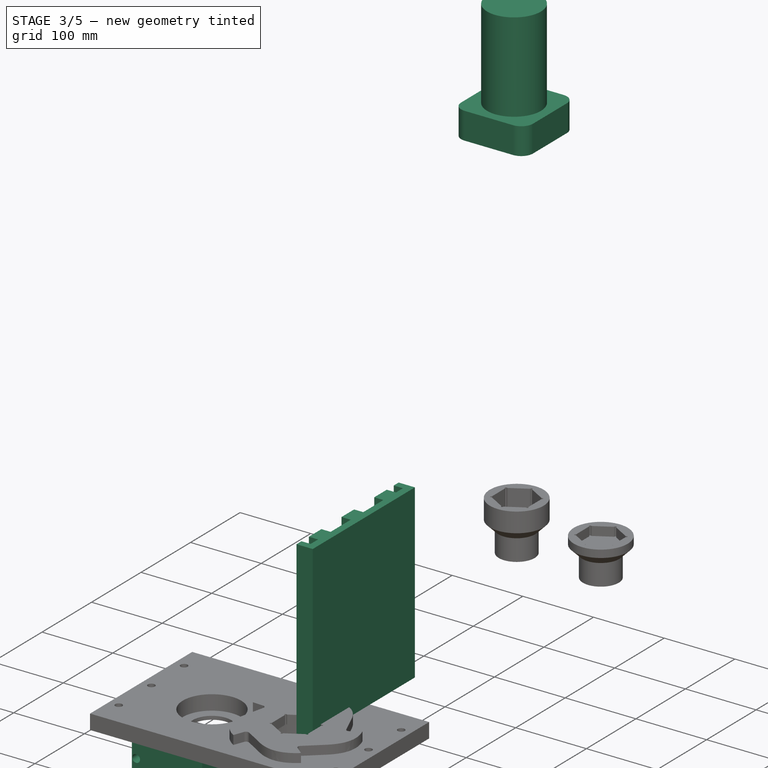
[diagram: stage 3 of 5 — iso view after this stage's code; geometry added in this stage tinted green]
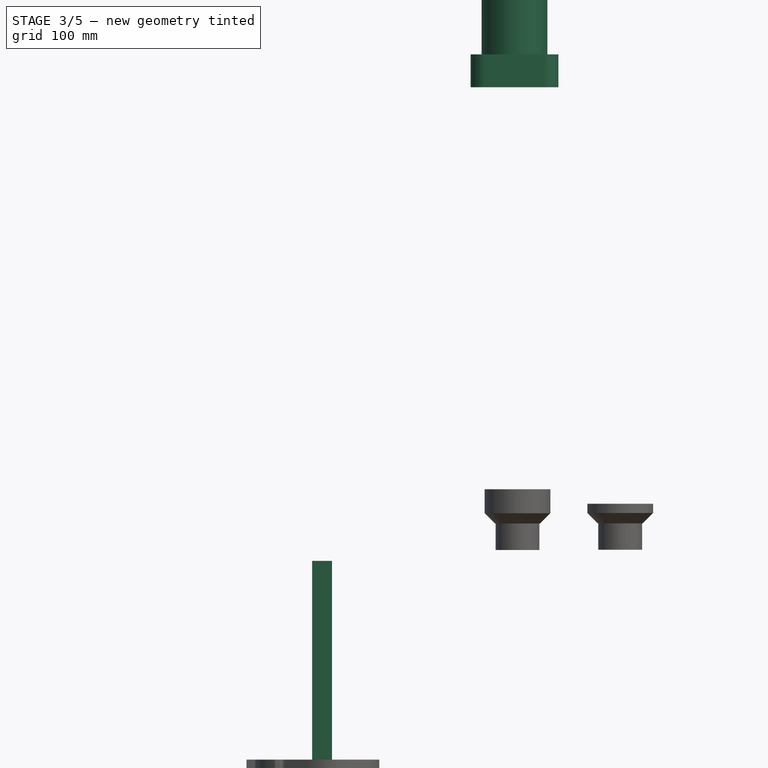
[diagram: stage 3 of 5 — front view after this stage's code; geometry added in this stage tinted green]
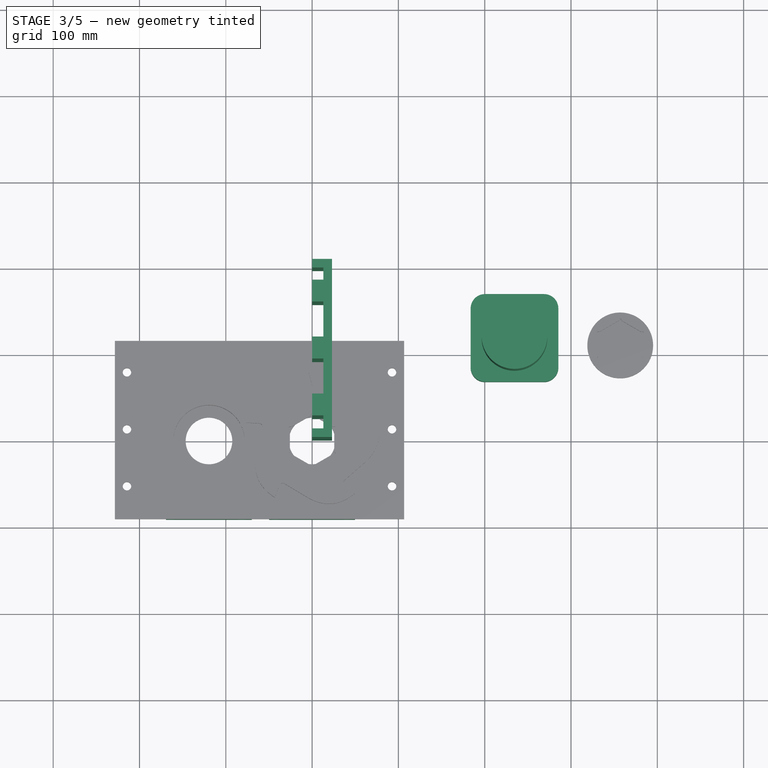
[diagram: stage 3 of 5 — top view after this stage's code; geometry added in this stage tinted green]
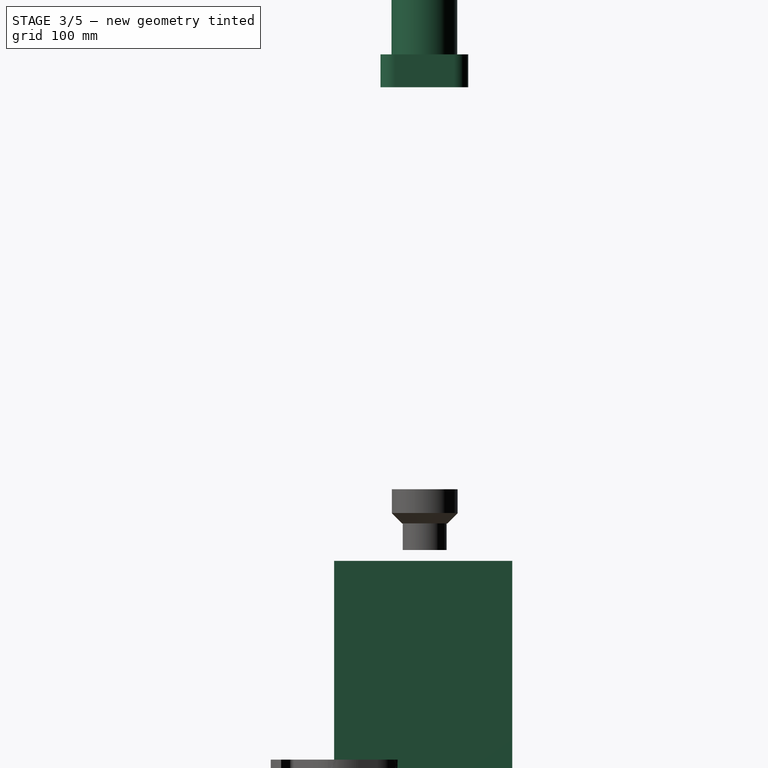
[diagram: stage 3 of 5 — right view after this stage's code; geometry added in this stage tinted green]
FEATURE [PartDesign::Body] Body001  label="Wiper"
  AllowCompound = false
  Group = -> [Sketch001,Pad001]
  Origin = -> Origin004
  Placement = pos=(357,105.5,315) rot=(0,0,1;0rad)
  Tip = -> Pad001
FEATURE [App::Point] Origin007
  Role = Origin
FEATURE [Sketcher::SketchObject] Sketch002
  ArcFitTolerance = 1e-06
  AttachmentSupport = -> [XY_Plane003]
  ExternalTypes = [0]
  FullyConstrained = true
  MakeInternals = false
  MapMode = 5
  sketch-geometry (1):
    g0: Circle CenterX=0 CenterY=0 CenterZ=0 NormalX=0 NormalY=0 NormalZ=1 AngleXU=0 Radius=40
  constraints (2):
    c: Diameter(g0) = 80
    c: Coincident(g0,g-1)
FEATURE [PartDesign::Pad] Pad002
  Direction = (0,0,1)
  Length = 12.7
  Length2 = 10
  Profile = -> Sketch002
  ReferenceAxis = -> Sketch002 [N_Axis]
  Refine = true
  Suppressed = false
  Type = 0
FEATURE [App::Point] Origin029
  Role = Origin
FEATURE [Sketcher::SketchObject] Sketch009
  ArcFitTolerance = 1e-06
  AttachmentSupport = -> [XY_Plane014]
  ExternalTypes = [0]
  FullyConstrained = true
  MakeInternals = false
  MapMode = 5
  sketch-geometry (20):
    g0: LineSegment StartX=0 StartY=206.4 StartZ=0 EndX=0 EndY=196.4 EndZ=0
    g1: LineSegment StartX=0 StartY=196.4 StartZ=0 EndX=13 EndY=196.4 EndZ=0
    g2: LineSegment StartX=13 StartY=196.4 StartZ=0 EndX=13 EndY=182.4 EndZ=0
    g3: LineSegment StartX=13 StartY=182.4 StartZ=0 EndX=0 EndY=182.4 EndZ=0
    g4: LineSegment StartX=0 StartY=182.4 StartZ=0 EndX=0 EndY=157 EndZ=0
    g5: LineSegment StartX=0 StartY=157 StartZ=0 EndX=13 EndY=157 EndZ=0
    g6: LineSegment StartX=13 StartY=157 StartZ=0 EndX=13 EndY=116.4 EndZ=0
    g7: LineSegment StartX=13 StartY=116.4 StartZ=0 EndX=0 EndY=116.4 EndZ=0
    g8: LineSegment StartX=0 StartY=116.4 StartZ=0 EndX=0 EndY=91 EndZ=0
    g9: LineSegment StartX=0 StartY=91 StartZ=0 EndX=13 EndY=91 EndZ=0
    g10: LineSegment StartX=13 StartY=91 StartZ=0 EndX=13 EndY=50.4 EndZ=0
    g11: LineSegment StartX=13 StartY=50.4 StartZ=0 EndX=0 EndY=50.4 EndZ=0
    g12: LineSegment StartX=0 StartY=50.4 StartZ=0 EndX=0 EndY=25 EndZ=0
    g13: LineSegment StartX=0 StartY=25 StartZ=0 EndX=13 EndY=25 EndZ=0
    g14: LineSegment StartX=13 StartY=25 StartZ=0 EndX=13 EndY=10 EndZ=0
    g15: LineSegment StartX=13 StartY=10 StartZ=0 EndX=0 EndY=10 EndZ=0
    g16: LineSegment StartX=0 StartY=10 StartZ=0 EndX=0 EndY=0 EndZ=0
    g17: LineSegment StartX=0 StartY=0 StartZ=0 EndX=23 EndY=0 EndZ=0
    g18: LineSegment StartX=23 StartY=0 StartZ=0 EndX=23 EndY=206.4 EndZ=0
    g19: LineSegment StartX=23 StartY=206.4 StartZ=0 EndX=0 EndY=206.4 EndZ=0
  constraints (59):
    c: Vertical(g0)
    c: Coincident(g0,g1)
    c: Coincident(g1,g2)
    c: Vertical(g2)
    c: Coincident(g2,g3)
    c: Horizontal(g3)
    c: Coincident(g3,g4)
    c: Vertical(g4)
    c: Coincident(g4,g5)
    c: Horizontal(g5)
    c: Coincident(g5,g6)
    c: Vertical(g6)
    c: Coincident(g6,g7)
    c: Horizontal(g7)
    c: Coincident(g7,g8)
    c: Vertical(g8)
    c: Coincident(g8,g9)
    c: Horizontal(g9)
    c: Coincident(g9,g10)
    c: Vertical(g10)
    c: Coincident(g10,g11)
    c: Horizontal(g11)
    c: Coincident(g11,g12)
    c: Vertical(g12)
    c: Coincident(g12,g13)
    c: Horizontal(g13)
    c: Coincident(g13,g14)
    c: Vertical(g14)
    c: Coincident(g14,g15)
    c: Horizontal(g15)
    c: Coincident(g15,g16)
    c: Vertical(g16)
    c: Coincident(g16,g17)
    c: Horizontal(g17)
    c: Coincident(g17,g18)
    c: Vertical(g18)
    c: Coincident(g18,g19)
    c: Coincident(g19,g0)
    c: Horizontal(g19)
    c: Horizontal(g1)
    c: DistanceY(g4,g4) = 25.4
    c: Vertical(g2,g5)
    c: Vertical(g6,g9)
    c: Vertical(g10,g13)
    c: Equal(g4,g8)
    c: Equal(g8,g12)
    c: DistanceY(g6,g6) = 40.6
    c: Equal(g6,g10)
    c: DistanceY(g2,g2) = 14
    c: DistanceX(g3,g3) = 13
    c: DistanceY(g0,g0) = 10
    c: Equal(g5,g7)
    c: Equal(g9,g11)
    c: DistanceY(g14,g14) = 15
    c: Vertical(g12,g15)
    c: Vertical(g0,g3)
    c: DistanceX(g19,g19) = 23
    c: DistanceY(g16,g16) = 10
    c: Coincident(g16,g-1)
FEATURE [PartDesign::Pad] Pad014
  Direction = (0,0,1)
  Length = 243
  Length2 = 10
  Profile = -> Sketch009
  ReferenceAxis = -> Sketch009 [N_Axis]
  Refine = true
  Suppressed = false
  Type = 0
FEATURE [Sketcher::SketchObject] Sketch010
  ArcFitTolerance = 1e-06
  AttachmentSupport = -> [Pad014]
  ExternalTypes = [0]
  FullyConstrained = true
  MakeInternals = false
  MapMode = 52
  Placement = pos=(23,0,0) rot=(0,1,0;3.14159rad)
  sketch-geometry (5):
    g0: Circle CenterX=14 CenterY=104 CenterZ=0 NormalX=0 NormalY=0 NormalZ=1 AngleXU=0 Radius=4.925
    g1: Circle CenterX=14 CenterY=170 CenterZ=0 NormalX=0 NormalY=0 NormalZ=1 AngleXU=0 Radius=4.925
    g2: Circle CenterX=14 CenterY=38 CenterZ=0 NormalX=0 NormalY=0 NormalZ=1 AngleXU=0 Radius=4.925
    g3: LineSegment [constr] StartX=14 StartY=104 StartZ=0 EndX=14 EndY=38 EndZ=0
    g4: LineSegment [constr] StartX=14 StartY=104 StartZ=0 EndX=14 EndY=170 EndZ=0
  constraints (13):
    c: Equal(g0,g1)
    c: Equal(g0,g2)
    c: Vertical(g2,g0)
    c: Coincident(g3,g0)
    c: Coincident(g3,g2)
    c: Coincident(g4,g0)
    c: Coincident(g4,g1)
    c: Vertical(g4)
    c: Equal(g3,g4)
    c: DistanceY(g4,g4) = 66
    c: Diameter(g0) = 9.85
    c: Distance(g2,g-1) = 38
    c: Distance(g2,g-2) = 14
FEATURE [PartDesign::Pocket] Pocket
  BaseFeature = -> Pad014
  Direction = (0,0,1)
  Length = 20
  Length2 = 5
  Profile = -> Sketch010
  ReferenceAxis = -> Sketch010 [N_Axis]
  Refine = true
  Suppressed = false
  Type = 0
FEATURE [App::Point] Origin033
  Role = Origin
FEATURE [App::Point] Origin035
  Role = Origin
FEATURE [Sketcher::SketchObject] Sketch014
  ArcFitTolerance = 1e-06
  AttachmentSupport = -> [XY_Plane017]
  ExternalTypes = [0]
  FullyConstrained = true
  MakeInternals = false
  MapMode = 5
  Placement = pos=(0,0,0) rot=(0,1,0;3.14159rad)
  sketch-geometry (1):
    g0: Circle CenterX=0 CenterY=0 CenterZ=0 NormalX=0 NormalY=0 NormalZ=1 AngleXU=0 Radius=38.1
  constraints (2):
    c: Diameter(g0) = 76.2
    c: Coincident(g0,g-1)
FEATURE [PartDesign::Pad] Pad017
  Direction = (0,0,-1)
  Length = 127
  Length2 = 10
  Profile = -> Sketch014
  ReferenceAxis = -> Sketch014 [N_Axis]
  Refine = true
  Suppressed = false
  Type = 0
FEATURE [PartDesign::Body] Body012  label="Motor001"
  AllowCompound = false
  Group = -> [Sketch014,Pad017]
  Origin = -> Origin034
  Placement = pos=(0,0,222) rot=(0,0,1;0rad)
  Tip = -> Pad017
FEATURE [App::Point] Origin037
  Role = Origin
FEATURE [Sketcher::SketchObject] Sketch015
  ArcFitTolerance = 1e-06
  AttachmentSupport = -> [XY_Plane018]
  ExternalTypes = [0]
  FullyConstrained = true
  MakeInternals = false
  MapMode = 5
  Placement = pos=(0,0,0) rot=(0,1,0;3.14159rad)
  sketch-geometry (14):
    g0: LineSegment StartX=-34.2 StartY=-50.8 StartZ=0 EndX=34.2 EndY=-50.8 EndZ=0
    g1: LineSegment StartX=50.8 StartY=-34.2 StartZ=0 EndX=50.8 EndY=34.2 EndZ=0
    g2: LineSegment StartX=34.2 StartY=50.8 StartZ=0 EndX=-34.2 EndY=50.8 EndZ=0
    g3: LineSegment StartX=-50.8 StartY=34.2 StartZ=0 EndX=-50.8 EndY=-34.2 EndZ=0
    g4: ArcOfCircle CenterX=-34.2 CenterY=-34.2 CenterZ=0 NormalX=0 NormalY=0 NormalZ=1 AngleXU=0 Radius=16.6 StartAngle=3.14159 EndAngle=4.71239
    g5: ArcOfCircle CenterX=34.2 CenterY=-34.2 CenterZ=0 NormalX=0 NormalY=0 NormalZ=1 AngleXU=0 Radius=16.6 StartAngle=4.71239 EndAngle=6.28319
    g6: ArcOfCircle CenterX=34.2 CenterY=34.2 CenterZ=0 NormalX=0 NormalY=0 NormalZ=1 AngleXU=0 Radius=16.6 StartAngle=1e-16 EndAngle=1.5708
    g7: ArcOfCircle CenterX=-34.2 CenterY=34.2 CenterZ=0 NormalX=0 NormalY=0 NormalZ=1 AngleXU=0 Radius=16.6 StartAngle=1.5708 EndAngle=3.14159
    g8: GeomPoint [constr] X=-50.8 Y=-50.8 Z=0
    g9: GeomPoint [constr] X=50.8 Y=50.8 Z=0
    g10: LineSegment [constr] StartX=-34.2 StartY=34.2 StartZ=0 EndX=0 EndY=0 EndZ=0
    g11: LineSegment [constr] StartX=0 StartY=0 StartZ=0 EndX=34.2 EndY=34.2 EndZ=0
    g12: LineSegment [constr] StartX=-34.2 StartY=-34.2 StartZ=0 EndX=0 EndY=0 EndZ=0
    g13: LineSegment [constr] StartX=0 StartY=0 StartZ=0 EndX=34.2 EndY=-34.2 EndZ=0
  constraints (32):
    c: Tangent(g0,g4) = -1.5708
    c: Tangent(g0,g5) = -1.5708
    c: Tangent(g1,g5) = -1.5708
    c: Tangent(g1,g6) = -1.5708
    c: Tangent(g2,g6) = -1.5708
    c: Tangent(g2,g7) = -1.5708
    c: Tangent(g3,g7) = -1.5708
    c: Tangent(g3,g4) = -1.5708
    c: Horizontal(g0)
    c: Horizontal(g2)
    c: Vertical(g1)
    c: Vertical(g3)
    c: Equal(g4,g5)
    c: Equal(g5,g6)
    c: Equal(g6,g7)
    c: PointOnObject(g8,g0)
    c: PointOnObject(g8,g3)
    c: PointOnObject(g9,g1)
    c: PointOnObject(g9,g2)
    c: Coincident(g10,g7)
    c: Coincident(g11,g10)
    c: Coincident(g12,g4)
    c: Coincident(g12,g10)
    c: Coincident(g13,g10)
    c: Coincident(g13,g5)
    c: Coincident(g11,g6)
    c: Equal(g12,g11)
    c: Equal(g10,g13)
    c: Distance(g3,g1) = 101.6
    c: DistanceY(g0,g2) = 101.6
    c: Radius(g7) = 16.6
    c: Coincident(g10,g-1)
FEATURE [PartDesign::Pad] Pad018
  Direction = (0,0,-1)
  Length = 38.1
  Length2 = 10
  Profile = -> Sketch015
  ReferenceAxis = -> Sketch015 [N_Axis]
  Refine = true
  Reversed = true
  Suppressed = false
  Type = 0
FEATURE [PartDesign::Body] Body013  label="Gearbox"
  AllowCompound = false
  Group = -> [Sketch015,Pad018]
  Origin = -> Origin036
  Placement = pos=(0,0,222) rot=(0,0,1;0rad)
  Tip = -> Pad018
FEATURE [App::Part] Part004  label="Motor"
  Group = -> [Body012,Body013]
  Origin = -> Origin032
  Placement = pos=(357,105.5,1) rot=(0,0,1;0rad)
FEATURE [Part::FeaturePython] Clone007  label="Motor002"  # Draft clone (typed FeaturePython)
  AttacherType = Attacher::AttachEngine3D
  ForceCompound = false
  Fuse = false
  Objects = -> [Part004]
  Placement = pos=(234.5,104.6,1052) rot=(0,0,1;0rad)
  Scale = (1,1,-1)
FEATURE [Sketcher::SketchObject] Sketch016
  ArcFitTolerance = 1e-06
  AttachmentSupport = -> [Pad003]
  ExternalTypes = [0]
  FullyConstrained = true
  MakeInternals = false
  MapMode = 5
  Placement = pos=(0,0,12.7) rot=(0,0,1;0rad)
  sketch-geometry (57):
    g0: LineSegment StartX=-25.7 StartY=12.6459 StartZ=0 EndX=-25.7 EndY=-12.6459 EndZ=0
    g1: LineSegment StartX=-23.8017 StartY=-15.9339 StartZ=0 EndX=-1.89834 EndY=-28.5798 EndZ=0
    g2: LineSegment StartX=1.89834 StartY=-28.5798 StartZ=0 EndX=23.8017 EndY=-15.9339 EndZ=0
    g3: LineSegment StartX=25.7 StartY=-12.6459 StartZ=0 EndX=25.7 EndY=12.6459 EndZ=0
    g4: LineSegment StartX=23.8017 StartY=15.9339 StartZ=0 EndX=1.89834 EndY=28.5798 EndZ=0
    g5: LineSegment StartX=-1.89834 StartY=28.5798 StartZ=0 EndX=-23.8017 EndY=15.9339 EndZ=0
    g6: Circle [constr] CenterX=0 CenterY=0 CenterZ=0 NormalX=0 NormalY=0 NormalZ=1 AngleXU=0 Radius=29.6758
    g7: ArcOfCircle CenterX=-25.7 CenterY=14.8379 CenterZ=0 NormalX=0 NormalY=0 NormalZ=1 AngleXU=0 Radius=1.25 StartAngle=1.25605 EndAngle=3.97994
    g8: ArcOfCircle CenterX=-26.8465 CenterY=12.6459 CenterZ=0 NormalX=0 NormalY=0 NormalZ=1 AngleXU=0 Radius=1.1465 StartAngle=0 EndAngle=0.838346
    g9: ArcOfCircle CenterX=-24.3749 CenterY=16.9268 CenterZ=0 NormalX=0 NormalY=0 NormalZ=1 AngleXU=0 Radius=1.1465 StartAngle=4.39764 EndAngle=5.23599
    g10: GeomPoint [constr] X=-25.7 Y=14.8379 Z=0
    g11: GeomPoint [constr] X=-4.2713e-12 Y=29.6758 Z=0
    g12: GeomPoint [constr] X=25.7 Y=14.8379 Z=0
    g13: GeomPoint [constr] X=25.7 Y=-14.8379 Z=0
    g14: GeomPoint [constr] X=-4.2713e-12 Y=-29.6758 Z=0
    g15: GeomPoint [constr] X=-25.7 Y=-14.8379 Z=0
    g16: LineSegment [constr] StartX=-25.7 StartY=14.8379 StartZ=0 EndX=-25.7 EndY=12.6459 EndZ=0
    g17: LineSegment [constr] StartX=-25.7 StartY=14.8379 StartZ=0 EndX=-23.8017 EndY=15.9339 EndZ=0
    g18: LineSegment [constr] StartX=-1.89834 StartY=28.5798 StartZ=0 EndX=-4.2713e-12 EndY=29.6758 EndZ=0
    g19: LineSegment [constr] StartX=1.89834 StartY=28.5798 StartZ=0 EndX=-4.2713e-12 EndY=29.6758 EndZ=0
    g20: LineSegment [constr] StartX=23.8017 StartY=15.9339 StartZ=0 EndX=25.7 EndY=14.8379 EndZ=0
    g21: LineSegment [constr] StartX=25.7 StartY=12.6459 StartZ=0 EndX=25.7 EndY=14.8379 EndZ=0
    g22: LineSegment [constr] StartX=23.8017 StartY=-15.9339 StartZ=0 EndX=25.7 EndY=-14.8379 EndZ=0
    g23: LineSegment [constr] StartX=25.7 StartY=-12.6459 StartZ=0 EndX=25.7 EndY=-14.8379 EndZ=0
    g24: LineSegment [constr] StartX=1.89834 StartY=-28.5798 StartZ=0 EndX=-4.2713e-12 EndY=-29.6758 EndZ=0
    g25: LineSegment [constr] StartX=-1.89834 StartY=-28.5798 StartZ=0 EndX=-4.2713e-12 EndY=-29.6758 EndZ=0
    g26: LineSegment [constr] StartX=-25.7 StartY=-12.6459 StartZ=0 EndX=-25.7 EndY=-14.8379 EndZ=0
    g27: LineSegment [constr] StartX=-23.8017 StartY=-15.9339 StartZ=0 EndX=-25.7 EndY=-14.8379 EndZ=0
    g28: LineSegment StartX=-26.5359 StartY=13.9085 StartZ=0 EndX=-26.0798 EndY=13.4984 EndZ=0
    g29: LineSegment StartX=-25.313 StartY=16.0265 StartZ=0 EndX=-24.7298 EndY=15.8366 EndZ=0
    g30: ArcOfCircle CenterX=-4.2713e-12 CenterY=29.6758 CenterZ=0 NormalX=0 NormalY=0 NormalZ=1 AngleXU=0 Radius=1.25 StartAngle=0.208852 EndAngle=2.93274
    g31: ArcOfCircle CenterX=2.47159 CenterY=29.5727 CenterZ=0 NormalX=0 NormalY=0 NormalZ=1 AngleXU=0 Radius=1.1465 StartAngle=3.35044 EndAngle=4.18879
    g32: ArcOfCircle CenterX=-2.47159 CenterY=29.5727 CenterZ=0 NormalX=0 NormalY=0 NormalZ=1 AngleXU=0 Radius=1.1465 StartAngle=5.23599 EndAngle=6.07433
    g33: LineSegment StartX=-1.22284 StartY=29.935 StartZ=0 EndX=-1.35 EndY=29.335 EndZ=0
    g34: LineSegment StartX=1.22284 StartY=29.935 StartZ=0 EndX=1.35 EndY=29.335 EndZ=0
    g35: ArcOfCircle CenterX=24.3749 CenterY=16.9268 CenterZ=0 NormalX=0 NormalY=0 NormalZ=1 AngleXU=0 Radius=1.1465 StartAngle=4.18879 EndAngle=5.02714
    g36: ArcOfCircle CenterX=25.7 CenterY=14.8379 CenterZ=0 NormalX=0 NormalY=0 NormalZ=1 AngleXU=0 Radius=1.25 StartAngle=5.44484 EndAngle=8.16873
    g37: ArcOfCircle CenterX=26.8465 CenterY=12.6459 CenterZ=0 NormalX=0 NormalY=0 NormalZ=1 AngleXU=0 Radius=1.1465 StartAngle=2.30325 EndAngle=3.14159
    g38: LineSegment StartX=24.7298 StartY=15.8366 StartZ=0 EndX=25.313 EndY=16.0265 EndZ=0
    g39: LineSegment StartX=26.0798 StartY=13.4984 StartZ=0 EndX=26.5359 EndY=13.9085 EndZ=0
    g40: LineSegment [constr] StartX=-26.0798 StartY=13.4984 StartZ=0 EndX=-24.7298 EndY=15.8366 EndZ=0
    g41: LineSegment [constr] StartX=-1.35 StartY=29.335 StartZ=0 EndX=1.35 EndY=29.335 EndZ=0
    g42: ArcOfCircle CenterX=25.7 CenterY=-14.8379 CenterZ=0 NormalX=0 NormalY=0 NormalZ=1 AngleXU=0 Radius=1.25 StartAngle=4.39764 EndAngle=7.12153
    g43: ArcOfCircle CenterX=26.8465 CenterY=-12.6459 CenterZ=0 NormalX=0 NormalY=0 NormalZ=1 AngleXU=0 Radius=1.1465 StartAngle=3.14159 EndAngle=3.97994
    g44: ArcOfCircle CenterX=24.3749 CenterY=-16.9268 CenterZ=0 NormalX=0 NormalY=0 NormalZ=1 AngleXU=0 Radius=1.1465 StartAngle=1.25605 EndAngle=2.0944
    g45: LineSegment StartX=26.0798 StartY=-13.4984 StartZ=0 EndX=26.5359 EndY=-13.9085 EndZ=0
    g46: LineSegment StartX=24.7298 StartY=-15.8366 StartZ=0 EndX=25.313 EndY=-16.0265 EndZ=0
    g47: ArcOfCircle CenterX=-2.47159 CenterY=-29.5727 CenterZ=0 NormalX=0 NormalY=0 NormalZ=1 AngleXU=0 Radius=1.1465 StartAngle=0.208852 EndAngle=1.0472
    g48: ArcOfCircle CenterX=2.47159 CenterY=-29.5727 CenterZ=0 NormalX=0 NormalY=0 NormalZ=1 AngleXU=0 Radius=1.1465 StartAngle=2.0944 EndAngle=2.93274
    g49: ArcOfCircle CenterX=-4.2713e-12 CenterY=-29.6758 CenterZ=0 NormalX=0 NormalY=0 NormalZ=1 AngleXU=0 Radius=1.25 StartAngle=3.35044 EndAngle=6.07433
    g50: LineSegment StartX=-1.35 StartY=-29.335 StartZ=0 EndX=-1.22284 EndY=-29.935 EndZ=0
    g51: LineSegment StartX=1.22284 StartY=-29.935 StartZ=0 EndX=1.35 EndY=-29.335 EndZ=0
    g52: ArcOfCircle CenterX=-26.8465 CenterY=-12.6459 CenterZ=0 NormalX=0 NormalY=0 NormalZ=1 AngleXU=0 Radius=1.1465 StartAngle=5.44484 EndAngle=6.28319
    g53: ArcOfCircle CenterX=-24.3749 CenterY=-16.9268 CenterZ=0 NormalX=0 NormalY=0 NormalZ=1 AngleXU=0 Radius=1.1465 StartAngle=1.0472 EndAngle=1.88554
    g54: ArcOfCircle CenterX=-25.7 CenterY=-14.8379 CenterZ=0 NormalX=0 NormalY=0 NormalZ=1 AngleXU=0 Radius=1.25 StartAngle=2.30325 EndAngle=5.02714
    g55: LineSegment StartX=-26.5359 StartY=-13.9085 StartZ=0 EndX=-26.0798 EndY=-13.4984 EndZ=0
    g56: LineSegment StartX=-25.313 StartY=-16.0265 StartZ=0 EndX=-24.7298 EndY=-15.8366 EndZ=0
  constraints (126):
    c: PointOnObject(g15,g6)
    c: PointOnObject(g14,g6)
    c: PointOnObject(g13,g6)
    c: PointOnObject(g12,g6)
    c: PointOnObject(g11,g6)
    c: PointOnObject(g10,g6)
    c: Vertical(g11,g14)
    c: Distance(g13,g0) = 51.4
    c: PointOnObject(g10,g0)
    c: PointOnObject(g10,g5)
    c: PointOnObject(g11,g4)
    c: PointOnObject(g11,g5)
    c: PointOnObject(g12,g3)
    c: PointOnObject(g12,g4)
    c: PointOnObject(g13,g2)
    c: PointOnObject(g13,g3)
    c: PointOnObject(g14,g1)
    c: PointOnObject(g14,g2)
    c: PointOnObject(g15,g0)
    c: PointOnObject(g15,g1)
    c: Coincident(g16,g10)
    c: Vertical(g16)
    c: Coincident(g17,g10)
    c: Coincident(g18,g5)
    c: Coincident(g18,g11)
    c: Coincident(g19,g4)
    c: Coincident(g19,g11)
    c: Coincident(g20,g12)
    c: Coincident(g21,g12)
    c: Vertical(g21)
    c: Coincident(g22,g13)
    c: Coincident(g23,g13)
    c: Coincident(g25,g14)
    c: Coincident(g26,g15)
    c: Coincident(g27,g15)
    c: Coincident(g10,g7)
    c: PointOnObject(g9,g6)
    c: Coincident(g17,g9)
    c: PointOnObject(g8,g6)
    c: Coincident(g16,g8)
    c: Equal(g16,g17)
    c: Tangent(g5,g9) = 1.5708
    c: Tangent(g0,g8) = 1.5708
    c: Equal(g20,g21)
    c: Equal(g18,g19)
    c: Equal(g17,g18)
    c: Equal(g19,g20)
    c: Equal(g23,g21)
    c: Equal(g22,g23)
    c: Equal(g22,g24)
    c: Equal(g25,g24)
    c: Equal(g27,g25)
    c: Equal(g26,g27)
    c: Distance(g8,g9) = 2.7
    c: Tangent(g28,g7) = -1.5708
    c: Tangent(g8,g28) = 1.5708
    c: Tangent(g29,g7) = 1.5708
    c: Tangent(g29,g9) = -1.5708
    c: Coincident(g30,g11)
    c: PointOnObject(g31,g6)
    c: PointOnObject(g32,g6)
    c: Tangent(g32,g5) = 1.5708
    c: Tangent(g31,g4) = 1.5708
    c: Tangent(g33,g32) = 1.5708
    c: Tangent(g33,g30) = -1.5708
    c: Tangent(g34,g30) = 1.5708
    c: Tangent(g34,g31) = -1.5708
    c: Equal(g28,g29)
    c: Equal(g33,g29)
    c: Equal(g33,g34)
    c: PointOnObject(g35,g6)
    c: Coincident(g36,g12)
    c: PointOnObject(g37,g6)
    c: Coincident(g20,g35)
    c: Coincident(g21,g37)
    c: Tangent(g38,g35) = -1.5708
    c: Tangent(g38,g36) = 1.5708
    c: Tangent(g39,g37) = 1.5708
    c: Tangent(g39,g36) = -1.5708
    c: Equal(g34,g38)
    c: Equal(g38,g39)
    c: Coincident(g40,g8)
    c: Coincident(g40,g9)
    c: Coincident(g41,g32)
    c: Coincident(g41,g31)
    c: Radius(g7) = 1.25
    c: Tangent(g4,g35) = 1.5708
    c: Tangent(g3,g37) = 1.5708
    c: Coincident(g42,g13)
    c: PointOnObject(g43,g6)
    c: PointOnObject(g44,g6)
    c: Coincident(g23,g43)
    c: Tangent(g3,g43) = 1.5708
    c: Coincident(g22,g44)
    c: Tangent(g2,g44) = 1.5708
    c: Tangent(g45,g43) = -1.5708
    c: Tangent(g45,g42) = 1.5708
    c: Tangent(g46,g44) = 1.5708
    c: Tangent(g46,g42) = -1.5708
    c: Equal(g39,g45)
    c: Coincident(g14,g24)
    c: PointOnObject(g47,g6)
    c: PointOnObject(g48,g6)
    c: Coincident(g49,g14)
    c: Coincident(g25,g47)
    c: Coincident(g24,g48)
    c: Tangent(g1,g47) = 1.5708
    c: Tangent(g2,g48) = 1.5708
    c: Tangent(g51,g48) = 1.5708
    c: Tangent(g51,g49) = -1.5708
    c: Tangent(g50,g49) = -1.5708
    c: Tangent(g50,g47) = 1.5708
    c: Equal(g46,g51)
    c: PointOnObject(g52,g6)
    c: PointOnObject(g53,g6)
    c: Coincident(g54,g15)
    c: Coincident(g27,g53)
    c: Coincident(g26,g52)
    c: Tangent(g0,g52) = 1.5708
    c: Tangent(g1,g53) = 1.5708
    c: Tangent(g56,g53) = 1.5708
    c: Tangent(g56,g54) = -1.5708
    c: Tangent(g55,g54) = 1.5708
    c: Tangent(g55,g52) = -1.5708
    c: Equal(g56,g50)
    c: Coincident(g6,g-1)
FEATURE [Sketcher::SketchObject] Sketch017
  ArcFitTolerance = 1e-06
  ExternalTypes = [0]
  FullyConstrained = true
  MakeInternals = false
  MapMode = 5
  sketch-geometry (57):
    g0: LineSegment StartX=-25.7 StartY=12.6459 StartZ=0 EndX=-25.7 EndY=-12.6459 EndZ=0
    g1: LineSegment StartX=-23.8017 StartY=-15.9339 StartZ=0 EndX=-1.89834 EndY=-28.5798 EndZ=0
    g2: LineSegment StartX=1.89834 StartY=-28.5798 StartZ=0 EndX=23.8017 EndY=-15.9339 EndZ=0
    g3: LineSegment StartX=25.7 StartY=-12.6459 StartZ=0 EndX=25.7 EndY=12.6459 EndZ=0
    g4: LineSegment StartX=23.8017 StartY=15.9339 StartZ=0 EndX=1.89834 EndY=28.5798 EndZ=0
    g5: LineSegment StartX=-1.89834 StartY=28.5798 StartZ=0 EndX=-23.8017 EndY=15.9339 EndZ=0
    g6: Circle [constr] CenterX=0 CenterY=0 CenterZ=0 NormalX=0 NormalY=0 NormalZ=1 AngleXU=0 Radius=29.6758
    g7: ArcOfCircle CenterX=-25.7 CenterY=14.8379 CenterZ=0 NormalX=0 NormalY=0 NormalZ=1 AngleXU=0 Radius=1.25 StartAngle=1.25605 EndAngle=3.97994
    g8: ArcOfCircle CenterX=-26.8465 CenterY=12.6459 CenterZ=0 NormalX=0 NormalY=0 NormalZ=1 AngleXU=0 Radius=1.1465 StartAngle=-1.8e-15 EndAngle=0.838346
    g9: ArcOfCircle CenterX=-24.3749 CenterY=16.9268 CenterZ=0 NormalX=0 NormalY=0 NormalZ=1 AngleXU=0 Radius=1.1465 StartAngle=4.39764 EndAngle=5.23599
    g10: GeomPoint [constr] X=-25.7 Y=14.8379 Z=0
    g11: GeomPoint [constr] X=-1.094e-13 Y=29.6758 Z=0
    g12: GeomPoint [constr] X=25.7 Y=14.8379 Z=0
    g13: GeomPoint [constr] X=25.7 Y=-14.8379 Z=0
    g14: GeomPoint [constr] X=-1.094e-13 Y=-29.6758 Z=0
    g15: GeomPoint [constr] X=-25.7 Y=-14.8379 Z=0
    g16: LineSegment [constr] StartX=-25.7 StartY=14.8379 StartZ=0 EndX=-25.7 EndY=12.6459 EndZ=0
    g17: LineSegment [constr] StartX=-25.7 StartY=14.8379 StartZ=0 EndX=-23.8017 EndY=15.9339 EndZ=0
    g18: LineSegment [constr] StartX=-1.89834 StartY=28.5798 StartZ=0 EndX=-1.095e-13 EndY=29.6758 EndZ=0
    g19: LineSegment [constr] StartX=1.89834 StartY=28.5798 StartZ=0 EndX=-1.095e-13 EndY=29.6758 EndZ=0
    g20: LineSegment [constr] StartX=23.8017 StartY=15.9339 StartZ=0 EndX=25.7 EndY=14.8379 EndZ=0
    g21: LineSegment [constr] StartX=25.7 StartY=12.6459 StartZ=0 EndX=25.7 EndY=14.8379 EndZ=0
    g22: LineSegment [constr] StartX=23.8017 StartY=-15.9339 StartZ=0 EndX=25.7 EndY=-14.8379 EndZ=0
    g23: LineSegment [constr] StartX=25.7 StartY=-12.6459 StartZ=0 EndX=25.7 EndY=-14.8379 EndZ=0
    g24: LineSegment [constr] StartX=1.89834 StartY=-28.5798 StartZ=0 EndX=-1.095e-13 EndY=-29.6758 EndZ=0
    g25: LineSegment [constr] StartX=-1.89834 StartY=-28.5798 StartZ=0 EndX=-1.092e-13 EndY=-29.6758 EndZ=0
    g26: LineSegment [constr] StartX=-25.7 StartY=-12.6459 StartZ=0 EndX=-25.7 EndY=-14.8379 EndZ=0
    g27: LineSegment [constr] StartX=-23.8017 StartY=-15.9339 StartZ=0 EndX=-25.7 EndY=-14.8379 EndZ=0
    g28: LineSegment StartX=-26.5359 StartY=13.9085 StartZ=0 EndX=-26.0798 EndY=13.4984 EndZ=0
    g29: LineSegment StartX=-25.313 StartY=16.0265 StartZ=0 EndX=-24.7298 EndY=15.8366 EndZ=0
    g30: ArcOfCircle CenterX=-1.094e-13 CenterY=29.6758 CenterZ=0 NormalX=0 NormalY=0 NormalZ=1 AngleXU=0 Radius=1.25 StartAngle=0.208852 EndAngle=2.93274
    g31: ArcOfCircle CenterX=2.47159 CenterY=29.5727 CenterZ=0 NormalX=0 NormalY=0 NormalZ=1 AngleXU=0 Radius=1.1465 StartAngle=3.35044 EndAngle=4.18879
    g32: ArcOfCircle CenterX=-2.47159 CenterY=29.5727 CenterZ=0 NormalX=0 NormalY=0 NormalZ=1 AngleXU=0 Radius=1.1465 StartAngle=5.23599 EndAngle=6.07433
    g33: LineSegment StartX=-1.22284 StartY=29.935 StartZ=0 EndX=-1.35 EndY=29.335 EndZ=0
    g34: LineSegment StartX=1.22284 StartY=29.935 StartZ=0 EndX=1.35 EndY=29.335 EndZ=0
    g35: ArcOfCircle CenterX=24.3749 CenterY=16.9268 CenterZ=0 NormalX=0 NormalY=0 NormalZ=1 AngleXU=0 Radius=1.1465 StartAngle=4.18879 EndAngle=5.02714
    g36: ArcOfCircle CenterX=25.7 CenterY=14.8379 CenterZ=0 NormalX=0 NormalY=0 NormalZ=1 AngleXU=0 Radius=1.25 StartAngle=5.44484 EndAngle=8.16873
    g37: ArcOfCircle CenterX=26.8465 CenterY=12.6459 CenterZ=0 NormalX=0 NormalY=0 NormalZ=1 AngleXU=0 Radius=1.1465 StartAngle=2.30325 EndAngle=3.14159
    g38: LineSegment StartX=24.7298 StartY=15.8366 StartZ=0 EndX=25.313 EndY=16.0265 EndZ=0
    g39: LineSegment StartX=26.0798 StartY=13.4984 StartZ=0 EndX=26.5359 EndY=13.9085 EndZ=0
    g40: LineSegment [constr] StartX=-26.0798 StartY=13.4984 StartZ=0 EndX=-24.7298 EndY=15.8366 EndZ=0
    g41: LineSegment [constr] StartX=-1.35 StartY=29.335 StartZ=0 EndX=1.35 EndY=29.335 EndZ=0
    g42: ArcOfCircle CenterX=25.7 CenterY=-14.8379 CenterZ=0 NormalX=0 NormalY=0 NormalZ=1 AngleXU=0 Radius=1.25 StartAngle=4.39764 EndAngle=7.12153
    g43: ArcOfCircle CenterX=26.8465 CenterY=-12.6459 CenterZ=0 NormalX=0 NormalY=0 NormalZ=1 AngleXU=0 Radius=1.1465 StartAngle=3.14159 EndAngle=3.97994
    g44: ArcOfCircle CenterX=24.3749 CenterY=-16.9268 CenterZ=0 NormalX=0 NormalY=0 NormalZ=1 AngleXU=0 Radius=1.1465 StartAngle=1.25605 EndAngle=2.0944
    g45: LineSegment StartX=26.0798 StartY=-13.4984 StartZ=0 EndX=26.5359 EndY=-13.9085 EndZ=0
    g46: LineSegment StartX=24.7298 StartY=-15.8366 StartZ=0 EndX=25.313 EndY=-16.0265 EndZ=0
    g47: ArcOfCircle CenterX=-2.47159 CenterY=-29.5727 CenterZ=0 NormalX=0 NormalY=0 NormalZ=1 AngleXU=0 Radius=1.1465 StartAngle=0.208852 EndAngle=1.0472
    g48: ArcOfCircle CenterX=2.47159 CenterY=-29.5727 CenterZ=0 NormalX=0 NormalY=0 NormalZ=1 AngleXU=0 Radius=1.1465 StartAngle=2.0944 EndAngle=2.93274
    g49: ArcOfCircle CenterX=-1.094e-13 CenterY=-29.6758 CenterZ=0 NormalX=0 NormalY=0 NormalZ=1 AngleXU=0 Radius=1.25 StartAngle=3.35044 EndAngle=6.07433
    g50: LineSegment StartX=-1.35 StartY=-29.335 StartZ=0 EndX=-1.22284 EndY=-29.935 EndZ=0
    g51: LineSegment StartX=1.22284 StartY=-29.935 StartZ=0 EndX=1.35 EndY=-29.335 EndZ=0
    g52: ArcOfCircle CenterX=-26.8465 CenterY=-12.6459 CenterZ=0 NormalX=0 NormalY=0 NormalZ=1 AngleXU=0 Radius=1.1465 StartAngle=5.44484 EndAngle=6.28319
    g53: ArcOfCircle CenterX=-24.3749 CenterY=-16.9268 CenterZ=0 NormalX=0 NormalY=0 NormalZ=1 AngleXU=0 Radius=1.1465 StartAngle=1.0472 EndAngle=1.88554
    g54: ArcOfCircle CenterX=-25.7 CenterY=-14.8379 CenterZ=0 NormalX=0 NormalY=0 NormalZ=1 AngleXU=0 Radius=1.25 StartAngle=2.30325 EndAngle=5.02714
    g55: LineSegment StartX=-26.5359 StartY=-13.9085 StartZ=0 EndX=-26.0798 EndY=-13.4984 EndZ=0
    g56: LineSegment StartX=-25.313 StartY=-16.0265 StartZ=0 EndX=-24.7298 EndY=-15.8366 EndZ=0
  constraints (126):
    c: PointOnObject(g15,g6)
    c: PointOnObject(g14,g6)
    c: PointOnObject(g13,g6)
    c: PointOnObject(g12,g6)
    c: PointOnObject(g11,g6)
    c: PointOnObject(g10,g6)
    c: Vertical(g11,g14)
    c: Distance(g13,g0) = 51.4
    c: PointOnObject(g10,g0)
    c: PointOnObject(g10,g5)
    c: PointOnObject(g11,g4)
    c: PointOnObject(g11,g5)
    c: PointOnObject(g12,g3)
    c: PointOnObject(g12,g4)
    c: PointOnObject(g13,g2)
    c: PointOnObject(g13,g3)
    c: PointOnObject(g14,g1)
    c: PointOnObject(g14,g2)
    c: PointOnObject(g15,g0)
    c: PointOnObject(g15,g1)
    c: Coincident(g16,g10)
    c: Vertical(g16)
    c: Coincident(g17,g10)
    c: Coincident(g18,g5)
    c: Coincident(g18,g11)
    c: Coincident(g19,g4)
    c: Coincident(g19,g11)
    c: Coincident(g20,g12)
    c: Coincident(g21,g12)
    c: Vertical(g21)
    c: Coincident(g22,g13)
    c: Coincident(g23,g13)
    c: Coincident(g25,g14)
    c: Coincident(g26,g15)
    c: Coincident(g27,g15)
    c: Coincident(g10,g7)
    c: PointOnObject(g9,g6)
    c: Coincident(g17,g9)
    c: PointOnObject(g8,g6)
    c: Coincident(g16,g8)
    c: Equal(g16,g17)
    c: Tangent(g5,g9) = 1.5708
    c: Tangent(g0,g8) = 1.5708
    c: Equal(g20,g21)
    c: Equal(g18,g19)
    c: Equal(g17,g18)
    c: Equal(g19,g20)
    c: Equal(g23,g21)
    c: Equal(g22,g23)
    c: Equal(g22,g24)
    c: Equal(g25,g24)
    c: Equal(g27,g25)
    c: Equal(g26,g27)
    c: Distance(g8,g9) = 2.7
    c: Tangent(g28,g7) = -1.5708
    c: Tangent(g8,g28) = 1.5708
    c: Tangent(g29,g7) = 1.5708
    c: Tangent(g29,g9) = -1.5708
    c: Coincident(g30,g11)
    c: PointOnObject(g31,g6)
    c: PointOnObject(g32,g6)
    c: Tangent(g32,g5) = 1.5708
    c: Tangent(g31,g4) = 1.5708
    c: Tangent(g33,g32) = 1.5708
    c: Tangent(g33,g30) = -1.5708
    c: Tangent(g34,g30) = 1.5708
    c: Tangent(g34,g31) = -1.5708
    c: Equal(g28,g29)
    c: Equal(g33,g29)
    c: Equal(g33,g34)
    c: PointOnObject(g35,g6)
    c: Coincident(g36,g12)
    c: PointOnObject(g37,g6)
    c: Coincident(g20,g35)
    c: Coincident(g21,g37)
    c: Tangent(g38,g35) = -1.5708
    c: Tangent(g38,g36) = 1.5708
    c: Tangent(g39,g37) = 1.5708
    c: Tangent(g39,g36) = -1.5708
    c: Equal(g34,g38)
    c: Equal(g38,g39)
    c: Coincident(g40,g8)
    c: Coincident(g40,g9)
    c: Coincident(g41,g32)
    c: Coincident(g41,g31)
    c: Radius(g7) = 1.25
    c: Tangent(g4,g35) = 1.5708
    c: Tangent(g3,g37) = 1.5708
    c: Coincident(g42,g13)
    c: PointOnObject(g43,g6)
    c: PointOnObject(g44,g6)
    c: Coincident(g23,g43)
    c: Tangent(g3,g43) = 1.5708
    c: Coincident(g22,g44)
    c: Tangent(g2,g44) = 1.5708
    c: Tangent(g45,g43) = -1.5708
    c: Tangent(g45,g42) = 1.5708
    c: Tangent(g46,g44) = 1.5708
    c: Tangent(g46,g42) = -1.5708
    c: Equal(g39,g45)
    c: Coincident(g14,g24)
    c: PointOnObject(g47,g6)
    c: PointOnObject(g48,g6)
    c: Coincident(g49,g14)
    c: Coincident(g25,g47)
    c: Coincident(g24,g48)
    c: Tangent(g1,g47) = 1.5708
    c: Tangent(g2,g48) = 1.5708
    c: Tangent(g51,g48) = 1.5708
    c: Tangent(g51,g49) = -1.5708
    c: Tangent(g50,g49) = -1.5708
    c: Tangent(g50,g47) = 1.5708
    c: Equal(g46,g51)
    c: PointOnObject(g52,g6)
    c: PointOnObject(g53,g6)
    c: Coincident(g54,g15)
    c: Coincident(g27,g53)
    c: Coincident(g26,g52)
    c: Tangent(g0,g52) = 1.5708
    c: Tangent(g1,g53) = 1.5708
    c: Tangent(g56,g53) = 1.5708
    c: Tangent(g56,g54) = -1.5708
    c: Tangent(g55,g54) = 1.5708
    c: Tangent(g55,g52) = -1.5708
    c: Equal(g56,g50)
    c: Coincident(g6,g-1)
FEATURE [PartDesign::Pocket] Pocket003
  BaseFeature = -> Pad002
  Direction = (0,0,-1)
  Length = 5
  Length2 = 5
  Profile = -> Sketch017
  ReferenceAxis = -> Sketch017 [N_Axis]
  Refine = true
  Reversed = true
  Suppressed = false
  Type = 1
FEATURE [Sketcher::SketchObject] Sketch018
  ArcFitTolerance = 1e-06
  AttachmentSupport = -> [Pad015]
  ExternalGeometry = -> [Pad015]
  ExternalTypes = [0,0]
  FullyConstrained = true
  MakeInternals = false
  MapMode = 11
  Placement = pos=(0,0,-21) rot=(0.707107,0.707107,0;3.14159rad)
  sketch-geometry (10):
    g0: LineSegment StartX=-51.7251 StartY=49.75 StartZ=0 EndX=-90.7251 EndY=49.75 EndZ=0
    g1: LineSegment StartX=-90.7251 StartY=49.75 StartZ=0 EndX=-90.7251 EndY=-49.75 EndZ=0
    g2: LineSegment StartX=-90.7251 StartY=-49.75 StartZ=0 EndX=-51.7251 EndY=-49.75 EndZ=0
    g3: LineSegment StartX=-51.7251 StartY=-49.75 StartZ=0 EndX=-51.7251 EndY=49.75 EndZ=0
    g4: GeomPoint [constr] X=-71.2251 Y=0 Z=0
    g5: LineSegment StartX=-51.7251 StartY=-69.75 StartZ=0 EndX=-90.7251 EndY=-69.75 EndZ=0
    g6: LineSegment StartX=-90.7251 StartY=-69.75 StartZ=0 EndX=-90.7251 EndY=-169.25 EndZ=0
    g7: LineSegment StartX=-90.7251 StartY=-169.25 StartZ=0 EndX=-51.7251 EndY=-169.25 EndZ=0
    g8: LineSegment StartX=-51.7251 StartY=-169.25 StartZ=0 EndX=-51.7251 EndY=-69.75 EndZ=0
    g9: GeomPoint [constr] X=-71.2251 Y=-119.5 Z=0
  constraints (26):
    c: Coincident(g0,g1)
    c: Coincident(g1,g2)
    c: Coincident(g2,g3)
    c: Coincident(g3,g0)
    c: Horizontal(g0)
    c: Horizontal(g2)
    c: Vertical(g1)
    c: Vertical(g3)
    c: Symmetric(g2,g0,g4)
    c: PointOnObject(g4,g-1)
    c: Coincident(g5,g6)
    c: Coincident(g6,g7)
    c: Coincident(g7,g8)
    c: Coincident(g8,g5)
    c: Horizontal(g5)
    c: Horizontal(g7)
    c: Vertical(g6)
    c: Vertical(g8)
    c: Symmetric(g7,g5,g9)
    c: Horizontal(g9,g-3)
    c: Vertical(g9,g4)
    c: Equal(g5,g2)
    c: Equal(g3,g8)
    c: PointOnObject(g1,g-4)
    c: DistanceY(g1,g1) = 99.5
    c: Distance(g2,g2) = 39
FEATURE [PartDesign::Pad] Pad019
  BaseFeature = -> Pad016
  Direction = (0,0,-1)
  Length = 40
  Length2 = 10
  Profile = -> Sketch018
  ReferenceAxis = -> Sketch018 [N_Axis]
  Refine = true
  Suppressed = false
  Type = 0
FEATURE [Sketcher::SketchObject] Sketch019
  ArcFitTolerance = 1e-06
  AttachmentSupport = -> [Pad019]
  ExternalGeometry = -> [Pad019]
  ExternalTypes = [0]
  FullyConstrained = false
  MakeInternals = false
  MapMode = 5
  Placement = pos=(-1.14e-14,-51.7251,0) rot=(0,0.707107,0.707107;3.14159rad)
  sketch-geometry (6):
    g0: Circle CenterX=-41.275 CenterY=-40.05 CenterZ=0 NormalX=0 NormalY=0 NormalZ=1 AngleXU=0 Radius=5.91754
    g1: Circle CenterX=41.275 CenterY=-40.05 CenterZ=0 NormalX=0 NormalY=0 NormalZ=1 AngleXU=0 Radius=5.91754
    g2: LineSegment [constr] StartX=-41.275 StartY=-40.05 StartZ=0 EndX=0 EndY=-40.05 EndZ=0
    g3: LineSegment [constr] StartX=0 StartY=-40.05 StartZ=0 EndX=41.275 EndY=-40.05 EndZ=0
    g4: Circle CenterX=80.725 CenterY=-40.05 CenterZ=0 NormalX=0 NormalY=0 NormalZ=1 AngleXU=0 Radius=5.91754
    g5: Circle CenterX=163.275 CenterY=-40.05 CenterZ=0 NormalX=0 NormalY=0 NormalZ=1 AngleXU=0 Radius=5.91754
  constraints (16):
    c: Horizontal(g0,g1)
    c: Equal(g0,g1)
    c: Coincident(g2,g0)
    c: Horizontal(g2)
    c: Coincident(g3,g2)
    c: Coincident(g3,g1)
    c: Equal(g3,g2)
    c: PointOnObject(g2,g-2)
    c: DistanceX(g2,g2) = 41.275
    c: Distance(g0,g-3) = 19.05
    c: Horizontal(g1,g4)
    c: Horizontal(g4,g5)
    c: Equal(g1,g4)
    c: Equal(g4,g5)
    c: DistanceX(g4,g5) = 82.55
    c: DistanceX(g0,g4) = 122
FEATURE [PartDesign::Hole] Hole
  BaseFeature = -> Pad019
  BaseProfileType = 6
  CustomThreadClearance = 0
  Depth = 50
  DepthType = 0
  Diameter = 11
  DrillForDepth = false
  DrillPoint = 1
  DrillPointAngle = 118
  HoleCutCountersinkAngle = 90
  HoleCutCustomValues = false
  HoleCutDepth = 0
  HoleCutDiameter = 0
  HoleCutType = 0
  ModelThread = false
  Profile = -> Sketch019
  Refine = true
  Suppressed = false
  Tapered = false
  TaperedAngle = 90
  ThreadClass = 0
  ThreadDepth = 50
  ThreadDepthType = 0
  ThreadDiameter = 10
  ThreadDirection = 0
  ThreadFit = 0
  ThreadSize = 18
  ThreadType = 1
  Threaded = false
  UseCustomThreadClearance = false
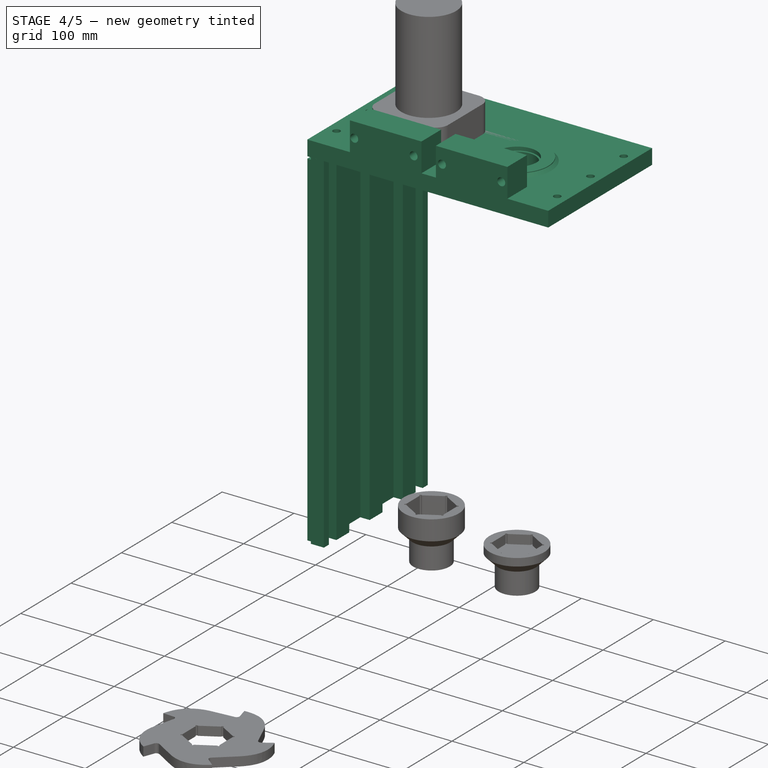
[diagram: stage 4 of 5 — iso view after this stage's code; geometry added in this stage tinted green]
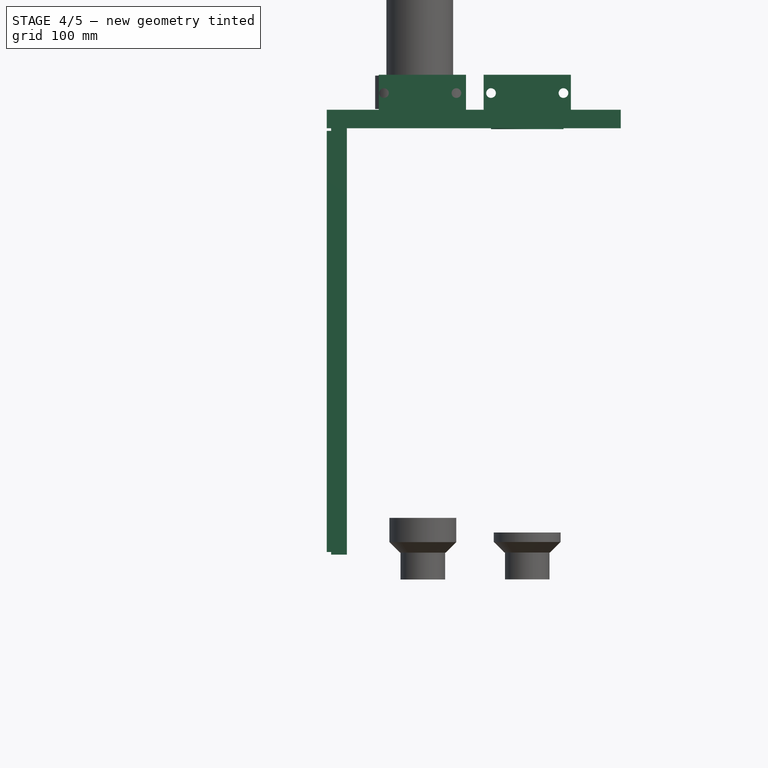
[diagram: stage 4 of 5 — front view after this stage's code; geometry added in this stage tinted green]
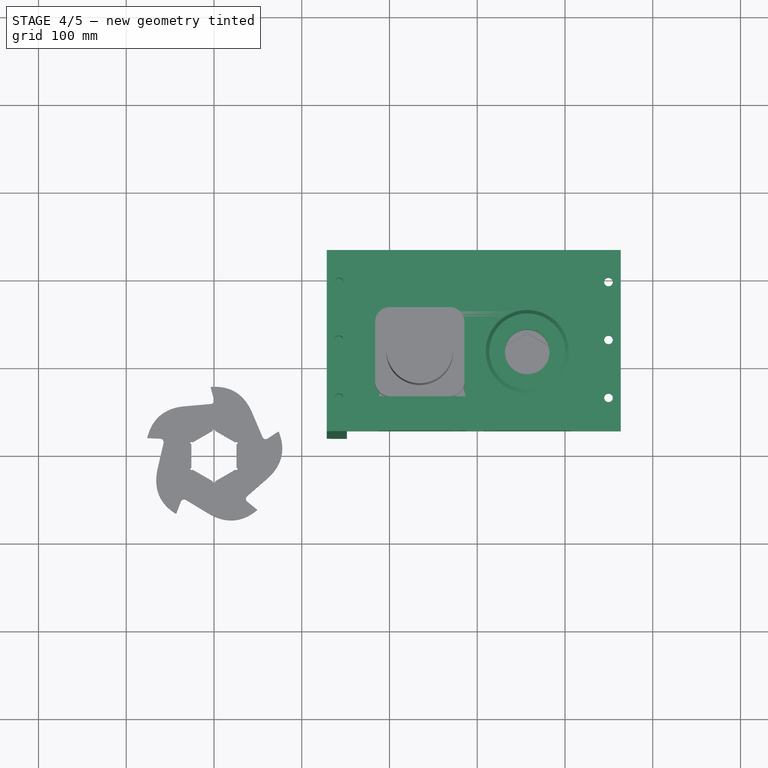
[diagram: stage 4 of 5 — top view after this stage's code; geometry added in this stage tinted green]
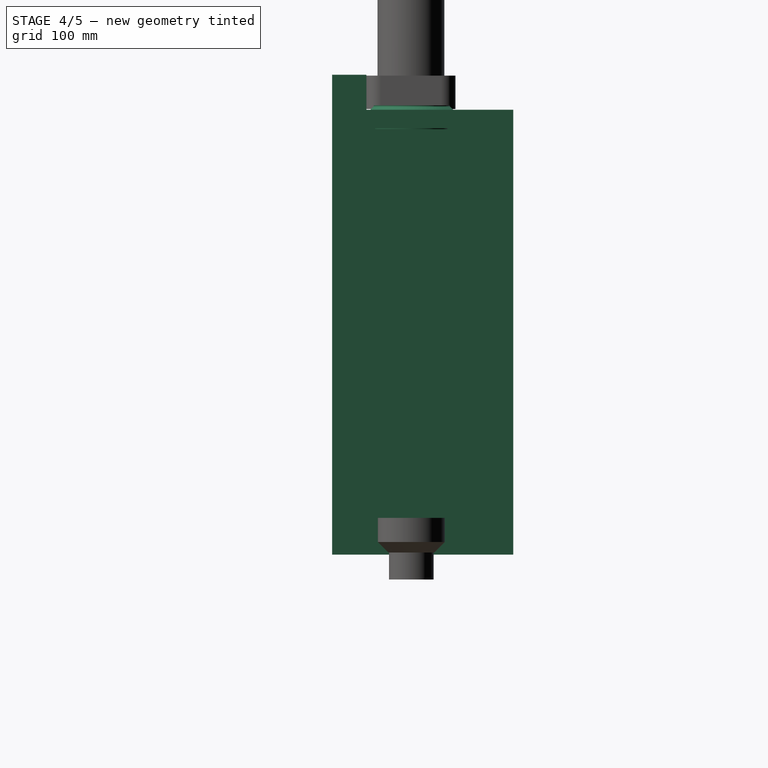
[diagram: stage 4 of 5 — right view after this stage's code; geometry added in this stage tinted green]
FEATURE [App::Point] Origin017
  Role = Origin
FEATURE [App::Point] Origin019
  Role = Origin
FEATURE [App::Point] Origin023
  Role = Origin
FEATURE [Sketcher::SketchObject] Sketch006
  ArcFitTolerance = 1e-06
  AttachmentSupport = -> [XY_Plane011]
  ExternalTypes = [0]
  FullyConstrained = true
  MakeInternals = false
  MapMode = 5
  sketch-geometry (2):
    g0: Circle CenterX=0 CenterY=0 CenterZ=0 NormalX=0 NormalY=0 NormalZ=1 AngleXU=0 Radius=41.275
    g1: Circle CenterX=0 CenterY=0 CenterZ=0 NormalX=0 NormalY=0 NormalZ=1 AngleXU=0 Radius=25.4
  constraints (4):
    c: Diameter(g0) = 82.55
    c: Coincident(g1,g0)
    c: Diameter(g1) = 50.8
    c: Coincident(g0,g-1)
FEATURE [PartDesign::Pad] Pad008
  Direction = (0,0,1)
  Length = 21.59
  Length2 = 10
  Profile = -> Sketch006
  ReferenceAxis = -> Sketch006 [N_Axis]
  Refine = true
  Suppressed = false
  Type = 0
FEATURE [PartDesign::Body] Body007  label="Bearing1_LM104911"
  AllowCompound = false
  Group = -> [Sketch006,Pad008]
  Origin = -> Origin022
  Placement = pos=(357,105,263) rot=(0,0,1;0rad)
  Tip = -> Pad008
FEATURE [Part::FeaturePython] Clone002  label="Bearing2_LM104911"  # Draft clone (typed FeaturePython)
  AttacherType = Attacher::AttachEngine3D
  ForceCompound = false
  Fuse = false
  Objects = -> [Body007]
  Placement = pos=(237.5,105.5,263) rot=(0,0,1;0rad)
  Scale = (1,1,1)
FEATURE [Part::FeaturePython] Clone003  label="Bearing3_LM104911"  # Draft clone (typed FeaturePython)
  AttacherType = Attacher::AttachEngine3D
  ForceCompound = false
  Fuse = false
  Objects = -> [Clone002]
  Placement = pos=(357,105,769) rot=(0,0,1;0rad)
  Scale = (1,1,1)
FEATURE [Sketcher::SketchObject] Sketch013
  ArcFitTolerance = 1e-06
  AttachmentOffset = pos=(0,0,0) rot=(0,0,-1;1.5708rad)
  AttachmentSupport = -> [Pocket]
  ExternalTypes = [0]
  FullyConstrained = true
  MakeInternals = false
  MapMode = 5
  Placement = pos=(23,0,0) rot=(0,1,0;1.5708rad)
  sketch-geometry (4):
    g0: LineSegment StartX=-3 StartY=207 StartZ=0 EndX=-3 EndY=0 EndZ=0
    g1: LineSegment StartX=-3 StartY=0 StartZ=0 EndX=0 EndY=0 EndZ=0
    g2: LineSegment StartX=0 StartY=0 StartZ=0 EndX=7.841e-12 EndY=207 EndZ=0
    g3: LineSegment StartX=7.841e-12 StartY=207 StartZ=0 EndX=-3 EndY=207 EndZ=0
  constraints (11):
    c: Coincident(g0,g1)
    c: Coincident(g1,g2)
    c: Coincident(g2,g3)
    c: Coincident(g3,g0)
    c: Vertical(g0)
    c: Horizontal(g1)
    c: Horizontal(g3)
    c: Distance(g3,g3) = 3
    c: Coincident(g1,g-1)
    c: Equal(g1,g3)
    c: DistanceY(g2,g2) = 207
FEATURE [PartDesign::Pocket] Pocket001
  BaseFeature = -> Pocket
  Direction = (-1,0,0)
  Length = 5
  Length2 = 5
  Profile = -> Sketch013
  ReferenceAxis = -> Sketch013 [N_Axis]
  Refine = true
  Suppressed = false
  Type = 0
FEATURE [PartDesign::Mirrored] Mirrored
  BaseFeature = -> Pocket001
  MirrorPlane = -> Pocket [Face5]
  Originals = -> [Pocket]
  Refine = true
  Suppressed = false
  TransformMode = 1
FEATURE [PartDesign::Body] Body010  label="Wall_Right"
  AllowCompound = false
  Group = -> [Sketch009,Pad014,Sketch010,Pocket,Sketch013,Pocket001,Mirrored]
  Origin = -> Origin028
  Placement = pos=(440.6,14.75,284) rot=(0,0,1;0rad)
  Tip = -> Mirrored
FEATURE [Part::FeaturePython] Clone005  label="Wall_Left"  # Draft clone (typed FeaturePython)
  AttacherType = Attacher::AttachEngine3D
  ForceCompound = false
  Fuse = false
  Objects = -> [Body010]
  Placement = pos=(151.5,14.75,284) rot=(0,0,1;0rad)
  Scale = (-1,1,1)
FEATURE [PartDesign::Chamfer] Chamfer
  Angle = 45
  Base = -> Hole [Edge42,Edge40]
  BaseFeature = -> Hole
  ChamferType = 0
  FlipDirection = false
  Refine = true
  Size = 4
  Size2 = 1
  SupportTransform = false
  Suppressed = false
  UseAllEdges = false
FEATURE [PartDesign::Body] Body011  label="Wall_Front"
  AllowCompound = false
  Group = -> [Sketch011,Pad015,Sketch012,Pad016,Sketch018,Pad019,Sketch019,Hole,Chamfer]
  Origin = -> Origin030
  Placement = pos=(357,105.5,284) rot=(0,0,1;0rad)
  Tip = -> Chamfer
FEATURE [Part::FeaturePython] Clone006  label="Wall_Back"  # Draft clone (typed FeaturePython)
  AttacherType = Attacher::AttachEngine3D
  ForceCompound = false
  Fuse = false
  Objects = -> [Body011]
  Placement = pos=(357,105.5,770) rot=(0,0,1;0rad)
  Scale = (1,1,-1)
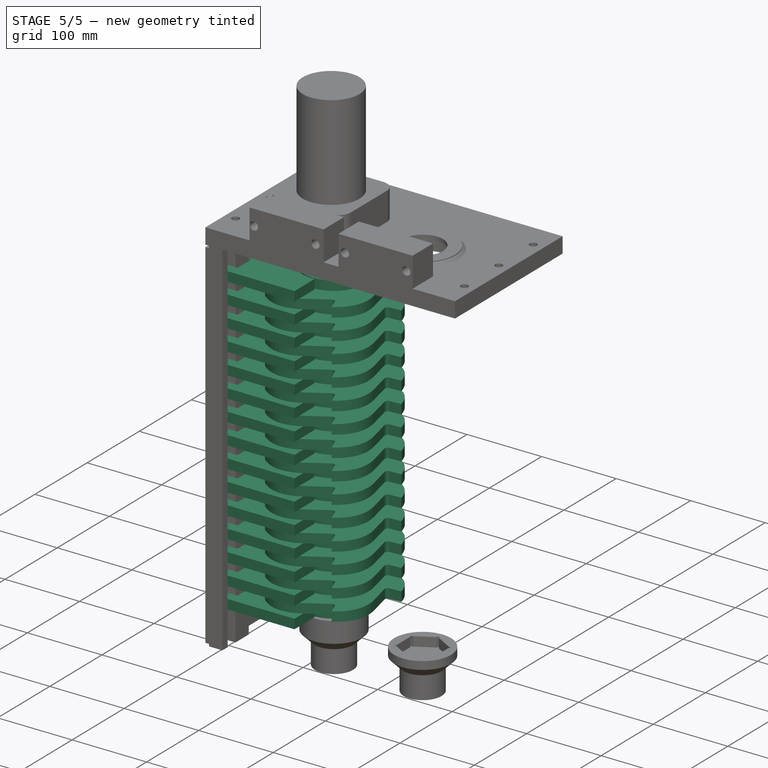
[diagram: stage 5 of 5 — iso view after this stage's code; geometry added in this stage tinted green]
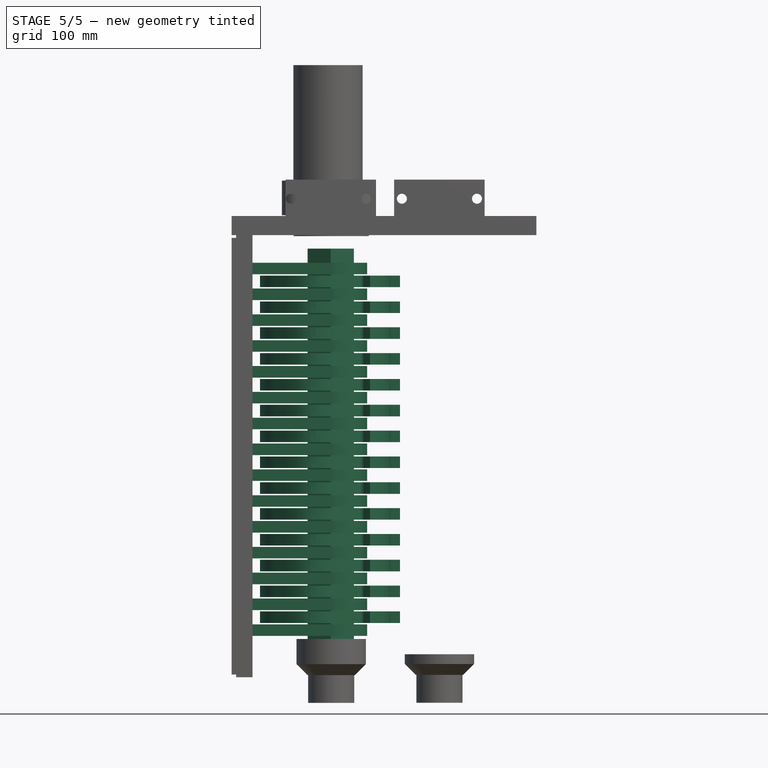
[diagram: stage 5 of 5 — front view after this stage's code; geometry added in this stage tinted green]
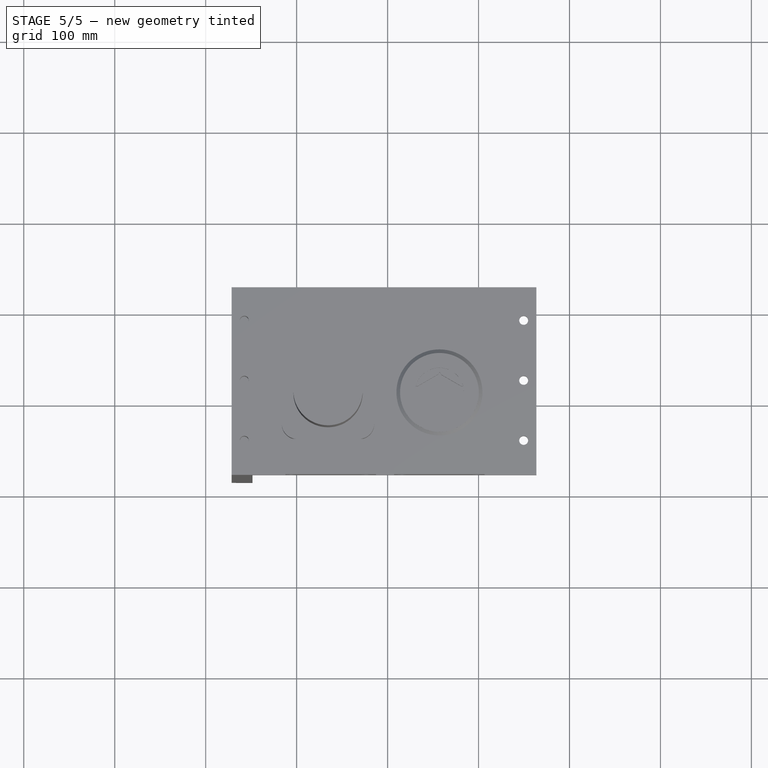
[diagram: stage 5 of 5 — top view after this stage's code; geometry added in this stage tinted green]
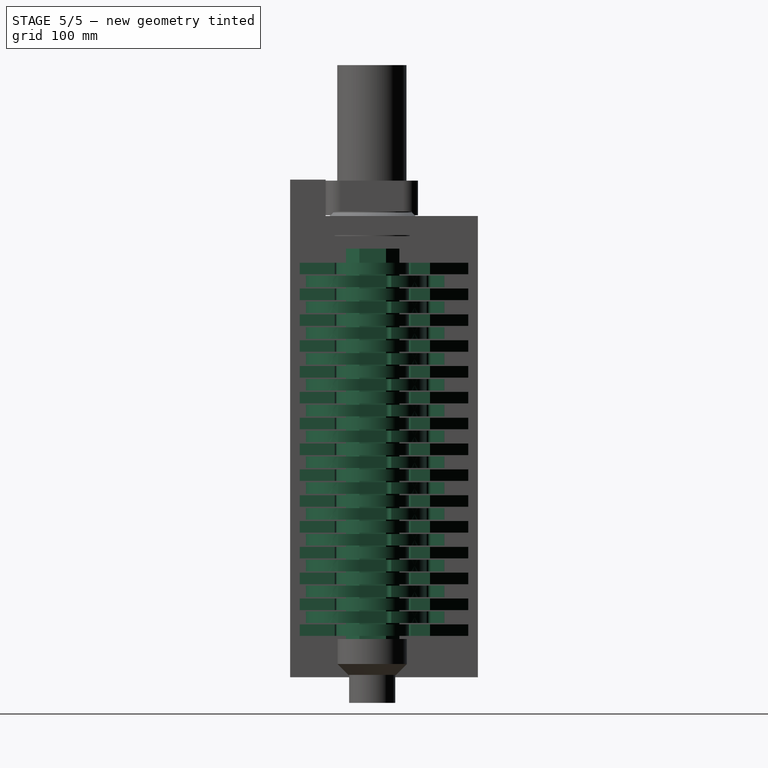
[diagram: stage 5 of 5 — right view after this stage's code; geometry added in this stage tinted green]
FEATURE [App::Point] Origin001
  Role = Origin
FEATURE [App::Point] Origin003
  Role = Origin
FEATURE [Sketcher::SketchObject] Sketch
  ArcFitTolerance = 1e-06
  AttachmentSupport = -> [Origin002]
  ExternalTypes = [0]
  FullyConstrained = true
  MakeInternals = false
  MapMode = 5
  sketch-geometry (7):
    g0: LineSegment StartX=25.4 StartY=14.6647 StartZ=0 EndX=1.847e-13 EndY=29.3294 EndZ=0
    g1: LineSegment StartX=1.861e-13 StartY=29.3294 StartZ=0 EndX=-25.4 EndY=14.6647 EndZ=0
    g2: LineSegment StartX=-25.4 StartY=14.6647 StartZ=0 EndX=-25.4 EndY=-14.6647 EndZ=0
    g3: LineSegment StartX=-25.4 StartY=-14.6647 StartZ=0 EndX=1.847e-13 EndY=-29.3294 EndZ=0
    g4: LineSegment StartX=1.861e-13 StartY=-29.3294 StartZ=0 EndX=25.4 EndY=-14.6647 EndZ=0
    g5: LineSegment StartX=25.4 StartY=-14.6647 StartZ=0 EndX=25.4 EndY=14.6647 EndZ=0
    g6: Circle [constr] CenterX=0 CenterY=0 CenterZ=0 NormalX=0 NormalY=0 NormalZ=1 AngleXU=0 Radius=29.3294
  constraints (16):
    c: Coincident(g0,g1)
    c: Coincident(g1,g2)
    c: Coincident(g2,g3)
    c: Coincident(g3,g4)
    c: Coincident(g4,g5)
    c: Coincident(g5,g0)
    c: Equal(g0, g1-g5) x5
    c: PointOnObject(g0,g6)
    c: PointOnObject(g1,g6)
    c: PointOnObject(g2,g6)
    c: PointOnObject(g3,g6)
    c: PointOnObject(g4,g6)
    c: PointOnObject(g5,g6)
    c: Distance(g5,g2) = 50.8
    c: Vertical(g0,g3)
    c: Coincident(g6,g-1)
FEATURE [PartDesign::Pad] Pad
  Direction = (0,0,1)
  Length = 457.2
  Length2 = 10
  Profile = -> Sketch
  ReferenceAxis = -> Sketch [N_Axis]
  Refine = true
  Suppressed = false
  Type = 0
FEATURE [PartDesign::Body] Body  label="2in_Hex_Bar"
  AllowCompound = false
  Group = -> [Sketch,Pad]
  Origin = -> Origin002
  Placement = pos=(357,105.5,298) rot=(0,0,1;0rad)
  Tip = -> Pad
FEATURE [App::Point] Origin005
  Role = Origin
FEATURE [Sketcher::SketchObject] Sketch001
  ArcFitTolerance = 1e-06
  AttachmentSupport = -> [XY_Plane002]
  ExternalTypes = [0]
  FullyConstrained = true
  MakeInternals = false
  MapMode = 5
  sketch-geometry (19):
    g0: LineSegment StartX=82.6791 StartY=92.4655 StartZ=0 EndX=95.6791 EndY=92.4655 EndZ=0
    g1: LineSegment StartX=95.6791 StartY=92.4655 StartZ=0 EndX=95.6791 EndY=105.132 EndZ=0
    g2: LineSegment StartX=95.6791 StartY=105.132 StartZ=0 EndX=78.4585 EndY=105.132 EndZ=0
    g3: LineSegment StartX=78.4585 StartY=105.132 StartZ=0 EndX=-3.32095 EndY=62.9875 EndZ=0
    g4: LineSegment StartX=-3.32095 StartY=62.9875 StartZ=0 EndX=-3.32095 EndY=41.8685 EndZ=0
    g5: LineSegment StartX=82.6791 StartY=92.4655 StartZ=0 EndX=82.6791 EndY=65.4655 EndZ=0
    g6: LineSegment StartX=82.6791 StartY=65.4655 StartZ=0 EndX=95.6791 EndY=65.4655 EndZ=0
    g7: LineSegment StartX=95.6791 StartY=65.4655 StartZ=0 EndX=95.6791 EndY=26.4655 EndZ=0
    g8: LineSegment StartX=95.6791 StartY=26.4655 StartZ=0 EndX=82.6791 EndY=26.4655 EndZ=0
    g9: LineSegment StartX=82.6791 StartY=26.4655 StartZ=0 EndX=82.6791 EndY=-0.5345 EndZ=0
    g10: LineSegment StartX=82.6791 StartY=-0.5345 StartZ=0 EndX=95.6791 EndY=-0.5345 EndZ=0
    g11: LineSegment StartX=95.6791 StartY=-0.5345 StartZ=0 EndX=95.6791 EndY=-39.5345 EndZ=0
    g12: LineSegment StartX=95.6791 StartY=-39.5345 StartZ=0 EndX=82.6791 EndY=-39.5345 EndZ=0
    g13: LineSegment StartX=82.6791 StartY=-39.5345 StartZ=0 EndX=82.6791 EndY=-66.5345 EndZ=0
    g14: LineSegment StartX=82.6791 StartY=-66.5345 StartZ=0 EndX=95.6791 EndY=-66.5345 EndZ=0
    g15: LineSegment StartX=95.6791 StartY=-66.5345 StartZ=0 EndX=95.6791 EndY=-80.1565 EndZ=0
    g16: LineSegment StartX=95.6791 StartY=-80.1565 StartZ=0 EndX=-3.32095 EndY=-80.1565 EndZ=0
    g17: LineSegment StartX=-3.32095 StartY=-80.1565 StartZ=0 EndX=-3.32095 EndY=-41.8685 EndZ=0
    g18: ArcOfCircle CenterX=0 CenterY=0 CenterZ=0 NormalX=0 NormalY=0 NormalZ=1 AngleXU=0 Radius=42 StartAngle=4.63324 EndAngle=7.93313
  constraints (57):
    c: Horizontal(g0)
    c: Coincident(g0,g1)
    c: Vertical(g1)
    c: Coincident(g1,g2)
    c: Horizontal(g2)
    c: Coincident(g2,g3)
    c: Coincident(g3,g4)
    c: Vertical(g4)
    c: Coincident(g0,g5)
    c: Vertical(g5)
    c: Coincident(g5,g6)
    c: Horizontal(g6)
    c: Coincident(g6,g7)
    c: Vertical(g7)
    c: Coincident(g7,g8)
    c: Horizontal(g8)
    c: Coincident(g8,g9)
    c: Vertical(g9)
    c: Coincident(g9,g10)
    c: Horizontal(g10)
    c: Coincident(g10,g11)
    c: Vertical(g11)
    c: Coincident(g11,g12)
    c: Horizontal(g12)
    c: Coincident(g12,g13)
    c: Vertical(g13)
    c: Coincident(g13,g14)
    c: Horizontal(g14)
    c: Coincident(g14,g15)
    c: Vertical(g15)
    c: Horizontal(g16)
    c: Coincident(g16,g17)
    c: Vertical(g17)
    c: Coincident(g18,g4)
    c: Coincident(g18,g17)
    c: Vertical(g4,g17)
    c: Vertical(g9,g12)
    c: Vertical(g14,g11)
    c: Vertical(g8,g5)
    c: Vertical(g10,g7)
    c: Vertical(g0,g6)
    c: Distance(g5,g5) = 27
    c: DistanceY(g7,g7) = 39
    c: Equal(g5,g9)
    c: Equal(g9,g13)
    c: Equal(g7,g11)
    c: DistanceX(g0,g0) = 13
    c: Radius(g18) = 42
    c: DistanceX(g16,g15) = 99
    c: Distance(g3,g3) = 92
    c: DistanceY(g15,g1) = 185.288
    c: Coincident(g16,g15)
    c: Distance(g17,g17) = 38.288
    c: DistanceY(g16,g3) = 143.144
    c: Distance(g4,g4) = 21.119
    c: Distance(g1,g1) = 12.666
    c: Coincident(g18,g-1)
FEATURE [PartDesign::Pad] Pad001
  Direction = (0,0,1)
  Length = 12.7
  Length2 = 10
  Profile = -> Sketch001
  ReferenceAxis = -> Sketch001 [N_Axis]
  Refine = true
  Suppressed = false
  Type = 0
FEATURE [Part::FeaturePython] Array  label="Wiper_Array"  # Draft array (typed FeaturePython)
  AlwaysSyncPlacement = false
  Angle = 360
  ArrayType = 0
  Axis = (0,0,1)
  Base = -> Body001
  Center = (0,0,0)
  Count = 15
  ExpandArray = false
  Fuse = false
  IntervalAxis = (0,0,0)
  IntervalX = (0,0,0)
  IntervalY = (0,0,0)
  IntervalZ = (0,0,28.4)
  NumberCircles = 3
  NumberPolar = 5
  NumberX = 1
  NumberY = 1
  NumberZ = 15
  PlacementList = 15 placements: arithmetic series from (357,105.5,315) step (0,0,28.4) to (357,105.5,712.6)
  RadialDistance = 50
  ScaleList = (15) [(1,1,1),(1,1,1),(1,1,1),(1,1,1),(1,1,1),(1,1,1),(1,1,1),(1,1,1),(1,1,1),(1,1,1),(1,1,1),(1,1,1),(1,1,1),(1,1,1),(1,1,1)]
  Symmetry = 1
  TangentialDistance = 25
FEATURE [App::Point] Origin011
  Role = Origin
FEATURE [Part::FeaturePython] Clone  label="2in_Hex_Bar001"  # Draft clone (typed FeaturePython)
  AttacherType = Attacher::AttachEngine3D
  ForceCompound = false
  Fuse = false
  Objects = -> [Body]
  Placement = pos=(237.5,105.5,298) rot=(0,0,1;0rad)
  Scale = (1,1,1)
FEATURE [Part::FeaturePython] Clone004  label="Bearing4_LM104911"  # Draft clone (typed FeaturePython)
  AttacherType = Attacher::AttachEngine3D
  ForceCompound = false
  Fuse = false
  Objects = -> [Clone003]
  Placement = pos=(238,105,769) rot=(0,0,1;0rad)
  Scale = (1,1,1)
FEATURE [PartDesign::Body] Body002  label="Spacer"
  AllowCompound = false
  Group = -> [Sketch002,Pad002,Sketch017,Pocket003]
  Origin = -> Origin006
  Placement = pos=(357,105.5,315) rot=(0,0,1;0rad)
  Tip = -> Pocket003
FEATURE [Part::FeaturePython] Array001  label="Spacer_Array"  # Draft array (typed FeaturePython)
  AlwaysSyncPlacement = false
  Angle = 360
  ArrayType = 0
  Axis = (0,0,1)
  Base = -> Body002
  Center = (0,0,0)
  Count = 15
  ExpandArray = false
  Fuse = false
  IntervalAxis = (0,0,0)
  IntervalX = (0,0,0)
  IntervalY = (0,0,0)
  IntervalZ = (0,0,28.4)
  NumberCircles = 3
  NumberPolar = 5
  NumberX = 1
  NumberY = 1
  NumberZ = 15
  PlacementList = 15 placements: arithmetic series from (357,105.5,315) step (0,0,28.4) to (357,105.5,712.6)
  RadialDistance = 50
  ScaleList = (15) [(1,1,1),(1,1,1),(1,1,1),(1,1,1),(1,1,1),(1,1,1),(1,1,1),(1,1,1),(1,1,1),(1,1,1),(1,1,1),(1,1,1),(1,1,1),(1,1,1),(1,1,1)]
  Symmetry = 1
  TangentialDistance = 25
FEATURE [PartDesign::Body] Body003  label="Blade"
  AllowCompound = false
  Group = -> [Sketch003,Pad003,Sketch016,Pocket006]
  Origin = -> Origin008
  Placement = pos=(357,105.5,329.2) rot=(0,0,1;0rad)
  Tip = -> Pocket006
FEATURE [Part::FeaturePython] Array002  label="Blade_Array"  # Draft array (typed FeaturePython)
  AlwaysSyncPlacement = false
  Angle = 360
  ArrayType = 0
  Axis = (0,0,1)
  Base = -> Body003
  Center = (0,0,0)
  Count = 14
  ExpandArray = false
  Fuse = false
  IntervalAxis = (0,0,0)
  IntervalX = (0,0,0)
  IntervalY = (0,0,0)
  IntervalZ = (0,0,28.4)
  NumberCircles = 3
  NumberPolar = 5
  NumberX = 1
  NumberY = 1
  NumberZ = 14
  PlacementList = 14 placements: arithmetic series from (357,105.5,329.2) step (0,0,28.4) to (357,105.5,698.4)
  RadialDistance = 50
  ScaleList = (14) [(1,1,1),(1,1,1),(1,1,1),(1,1,1),(1,1,1),(1,1,1),(1,1,1),(1,1,1),(1,1,1),(1,1,1),(1,1,1),(1,1,1),(1,1,1),(1,1,1)]
  Symmetry = 1
  TangentialDistance = 25
FEATURE [App::Part] Part  label="Teeth_Right"
  Group = -> [Body001,Body002,Body003,Array,Array001,Array002]
  Origin = -> Origin
FEATURE [Part::FeaturePython] Clone001  label="Teeth_Left"  # Draft clone (typed FeaturePython)
  AttacherType = Attacher::AttachEngine3D
  ForceCompound = false
  Fuse = false
  Objects = -> [Part]
  Placement = pos=(594.5,0,14.4) rot=(0,0,1;0rad)
  Scale = (-1,1,1)
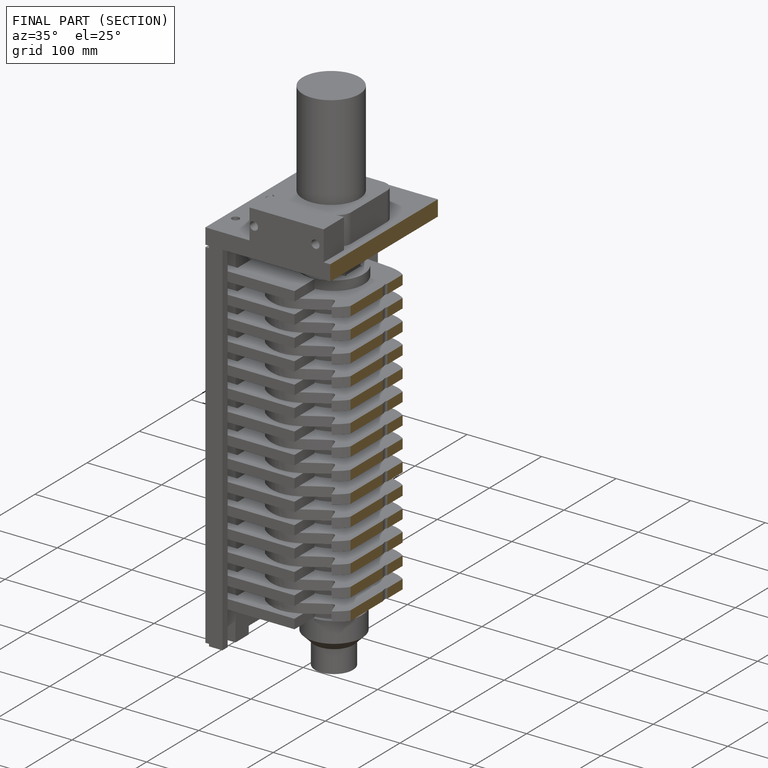
[diagram: finished part — half-section view (interior)]
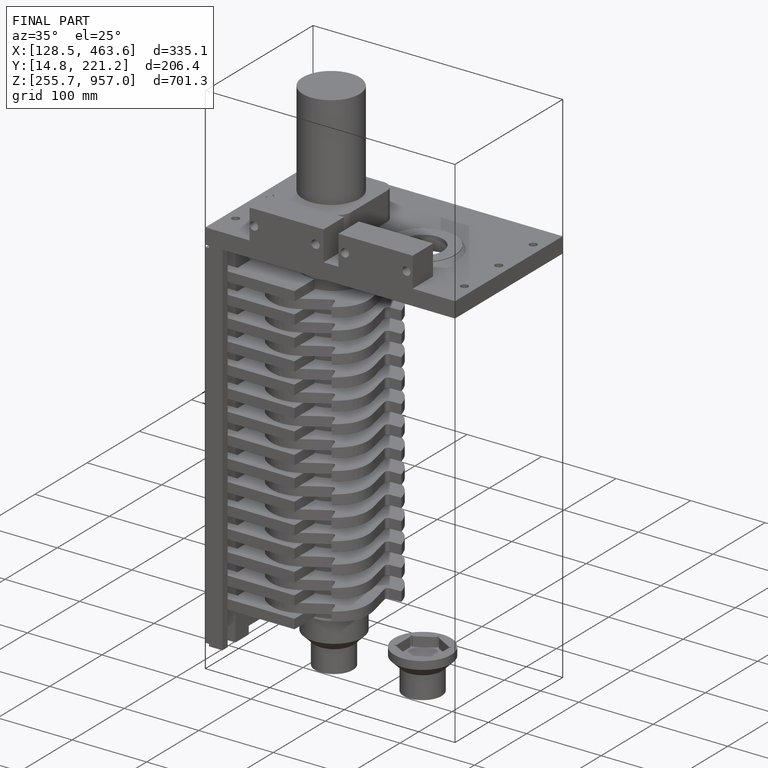
[diagram: finished part — iso view with bounding-box wireframe]
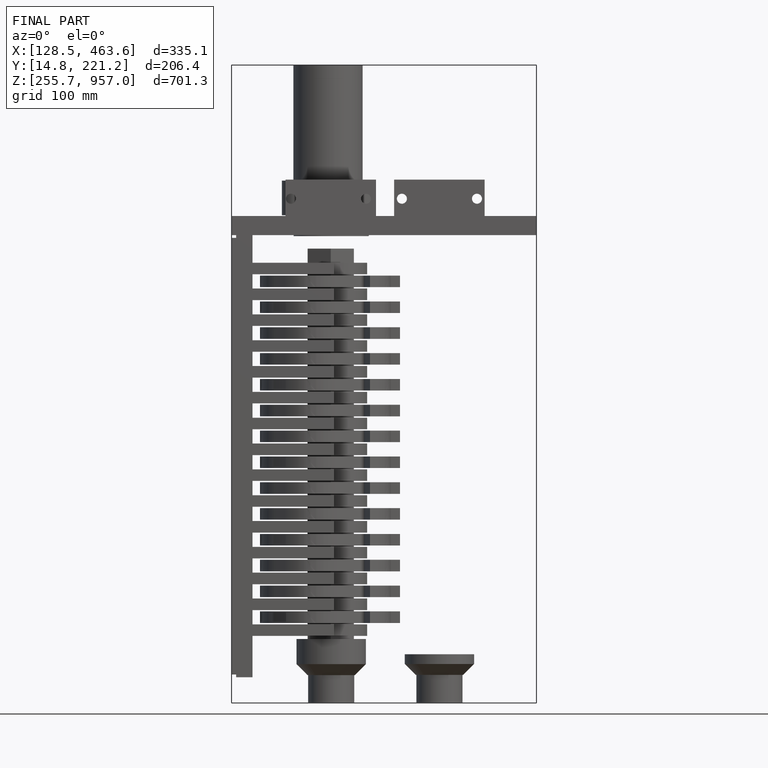
[diagram: finished part — front view with bounding-box wireframe]
